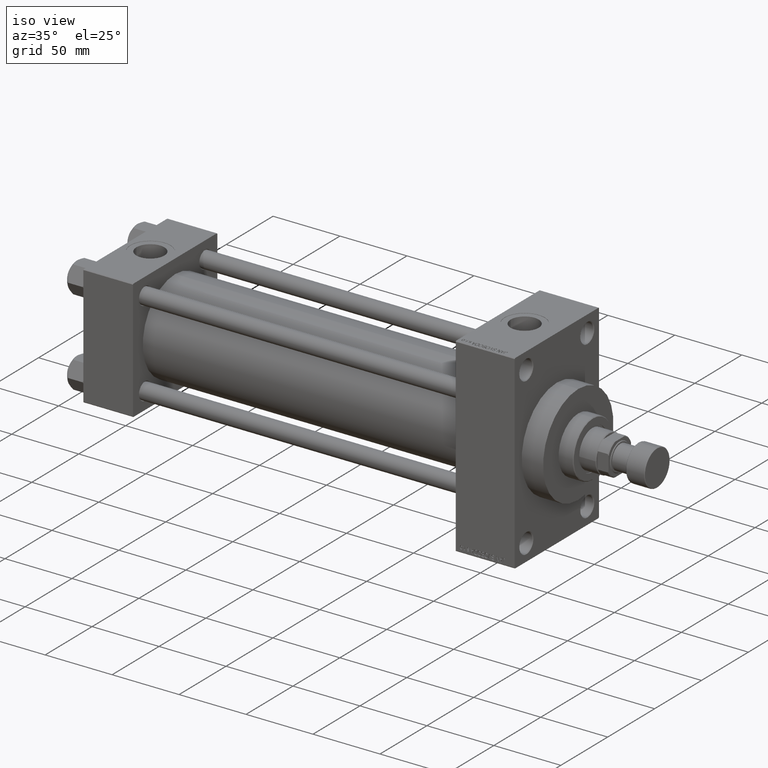
[diagram: clean part render]
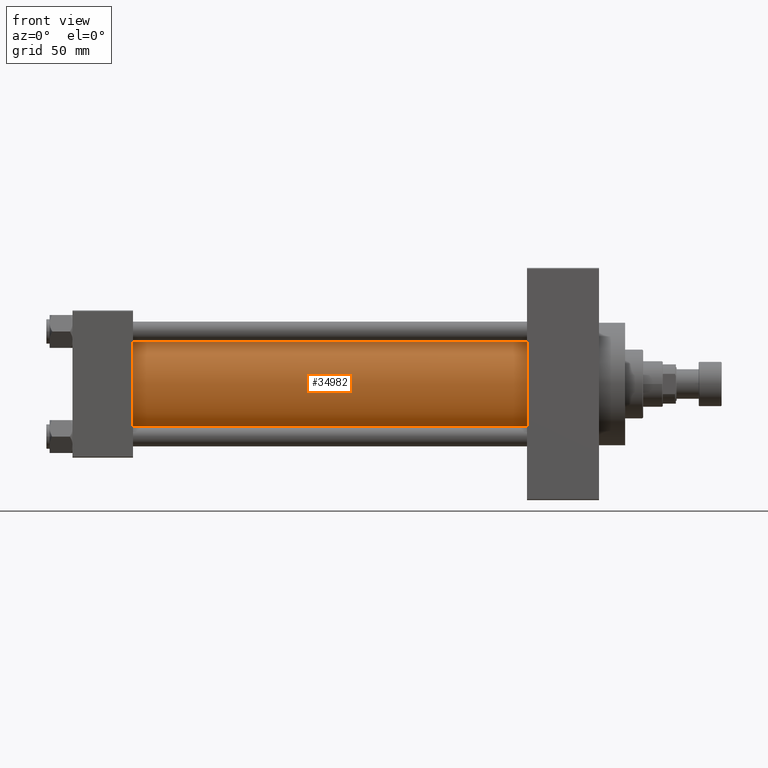
[diagram: tour spotlight — one face highlighted and labeled with its STEP entity id]
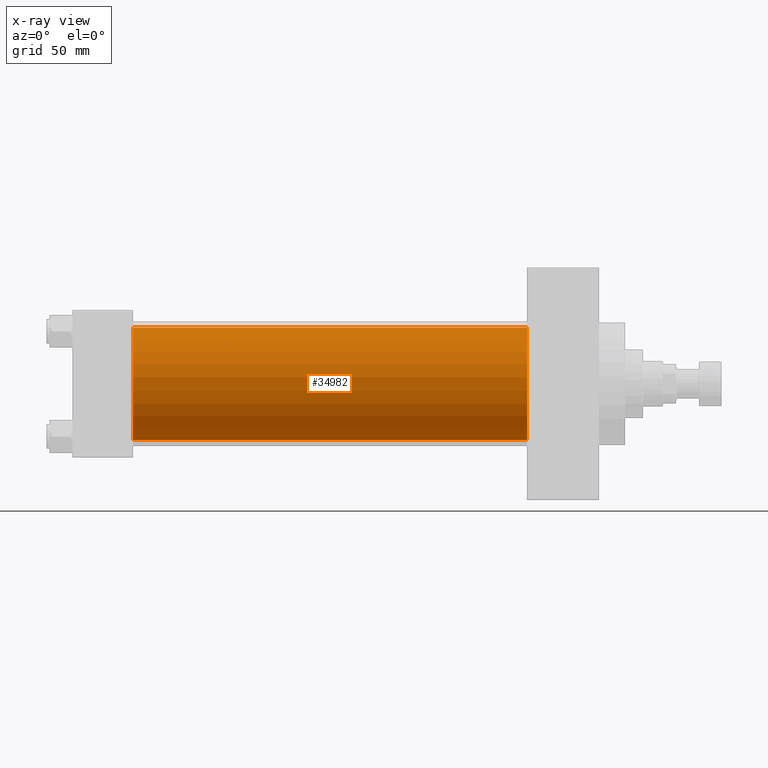
[diagram: x-ray of the same camera — body ghosted, this tour face saturated]
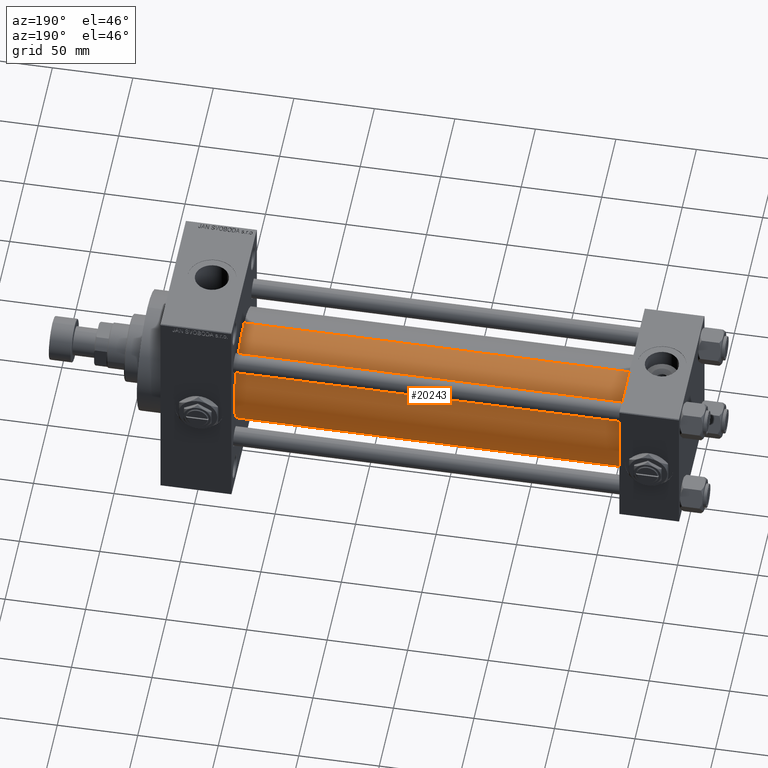
[diagram: tour spotlight — one face highlighted and labeled with its STEP entity id]
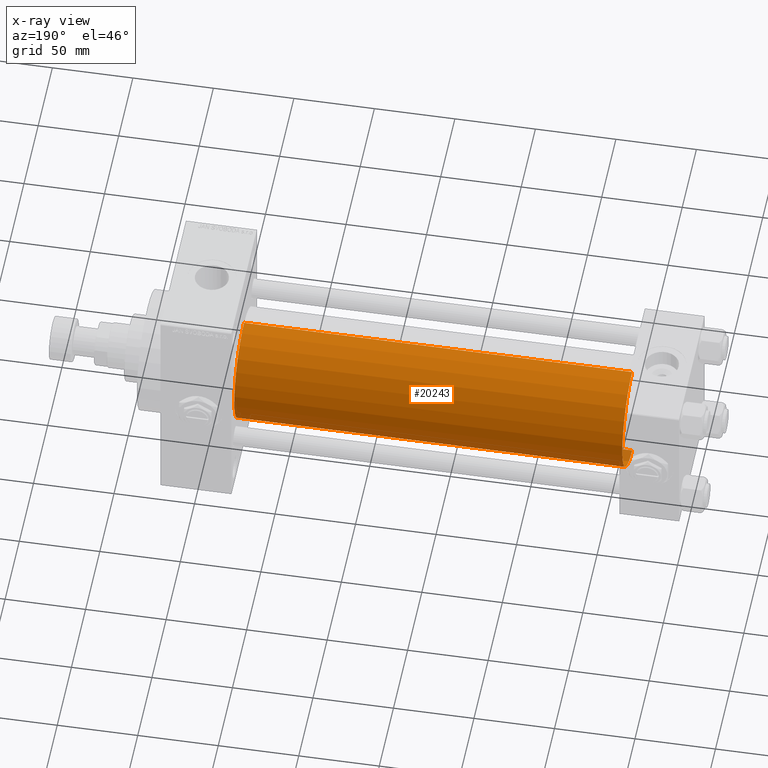
[diagram: x-ray of the same camera — body ghosted, this tour face saturated]
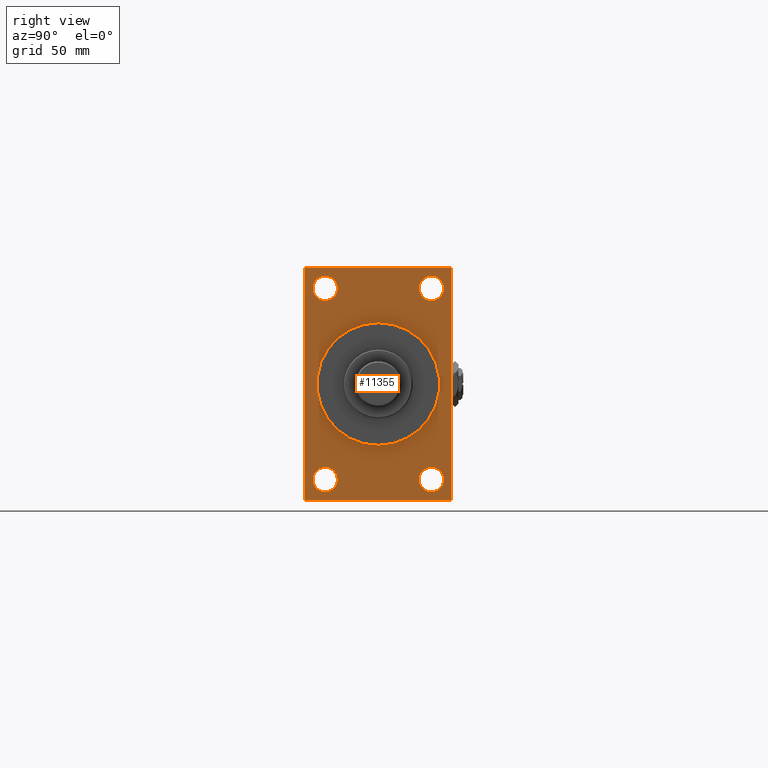
[diagram: tour spotlight — one face highlighted and labeled with its STEP entity id]
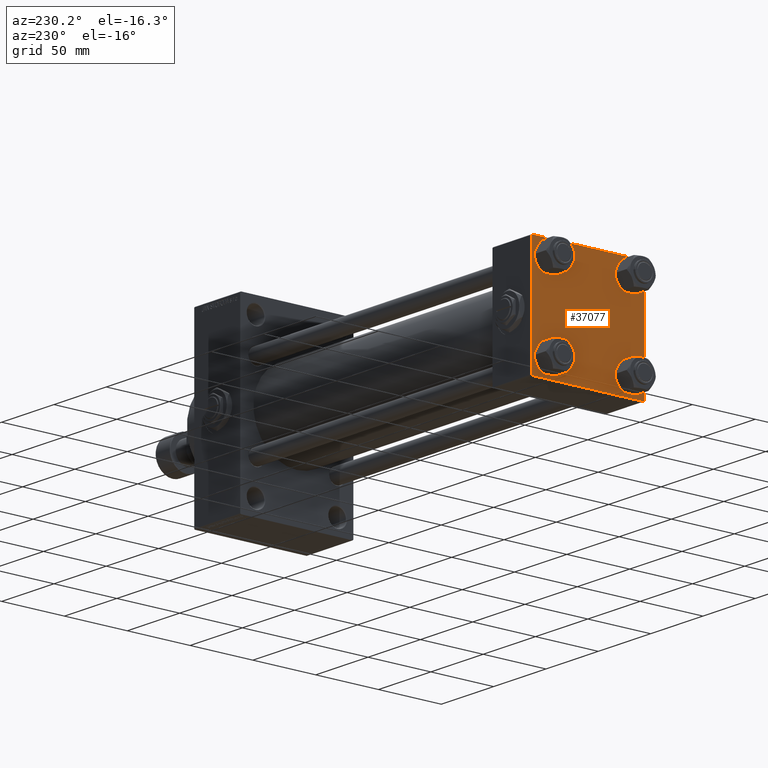
[diagram: tour spotlight — one face highlighted and labeled with its STEP entity id]
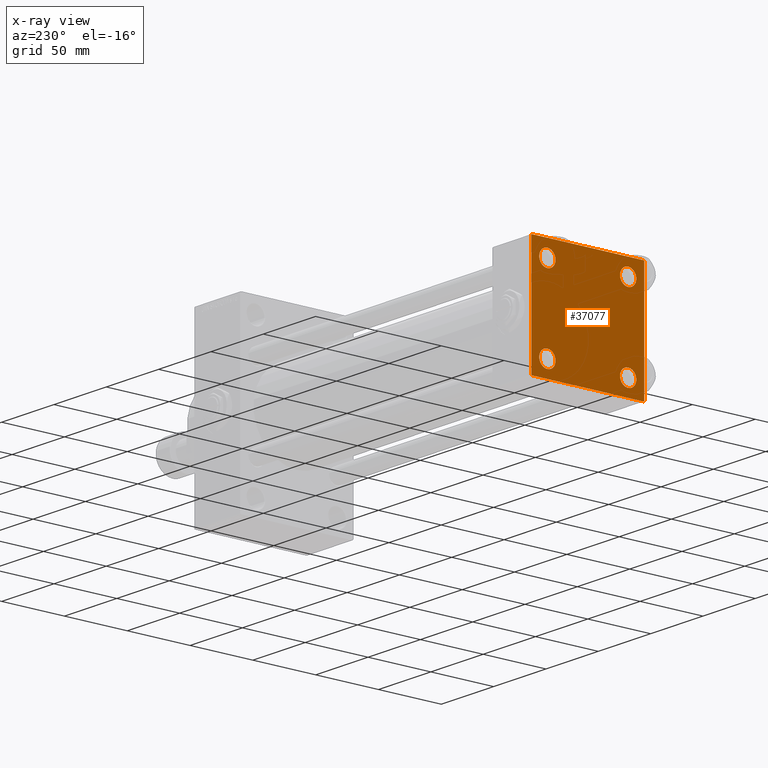
[diagram: x-ray of the same camera — body ghosted, this tour face saturated]
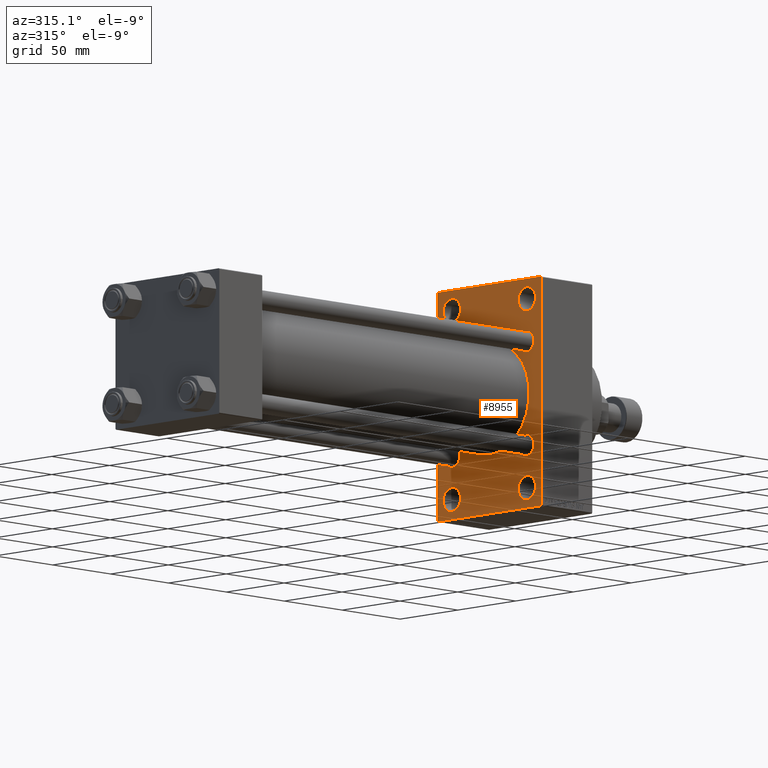
[diagram: tour spotlight — one face highlighted and labeled with its STEP entity id]
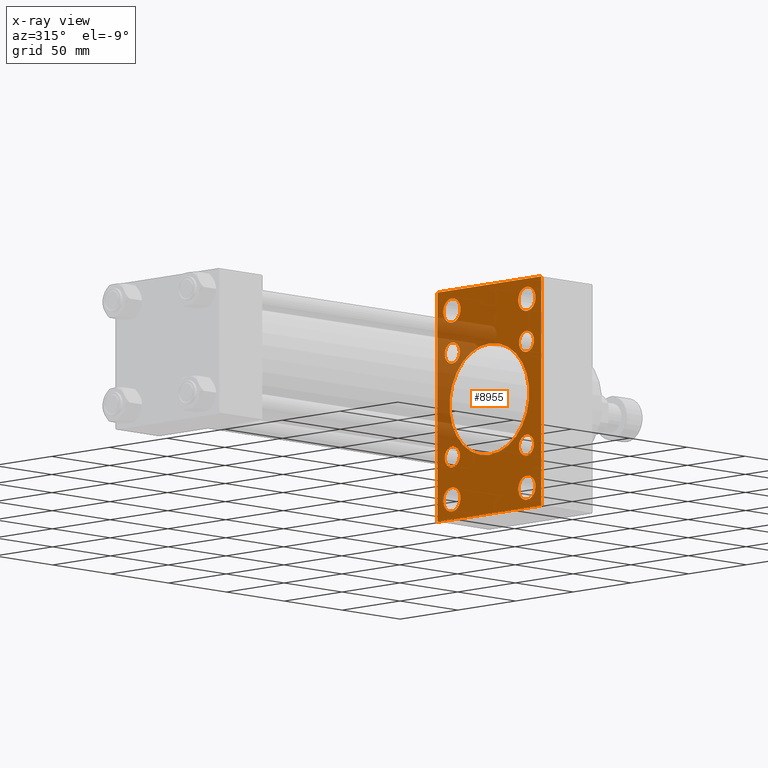
[diagram: x-ray of the same camera — body ghosted, this tour face saturated]
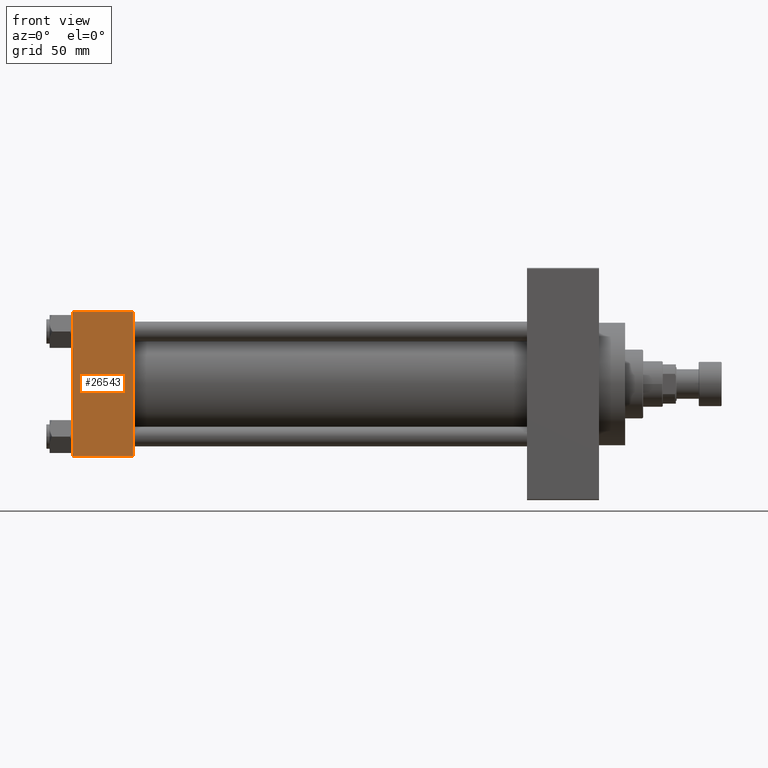
[diagram: tour spotlight — one face highlighted and labeled with its STEP entity id]
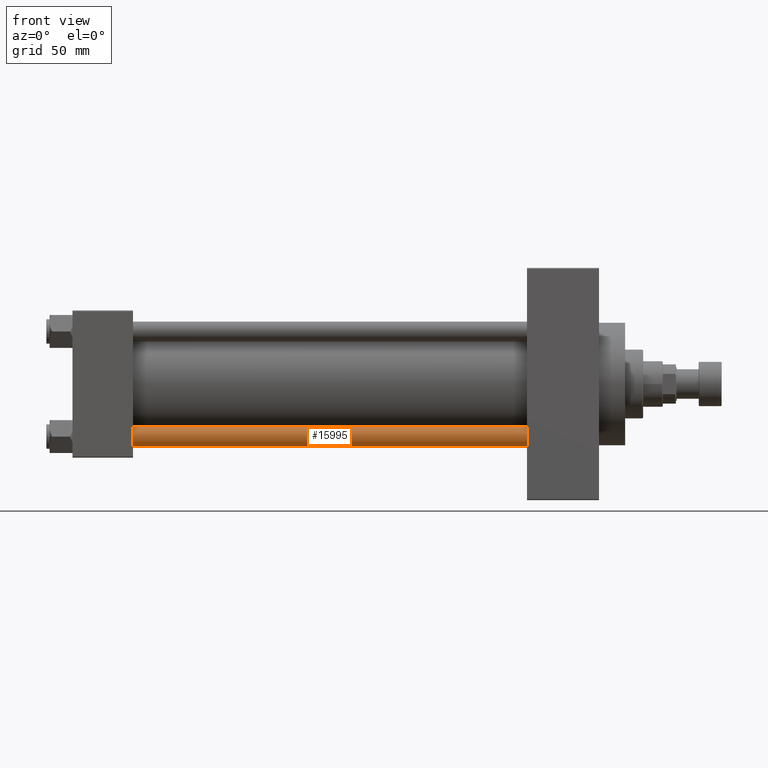
[diagram: tour spotlight — one face highlighted and labeled with its STEP entity id]
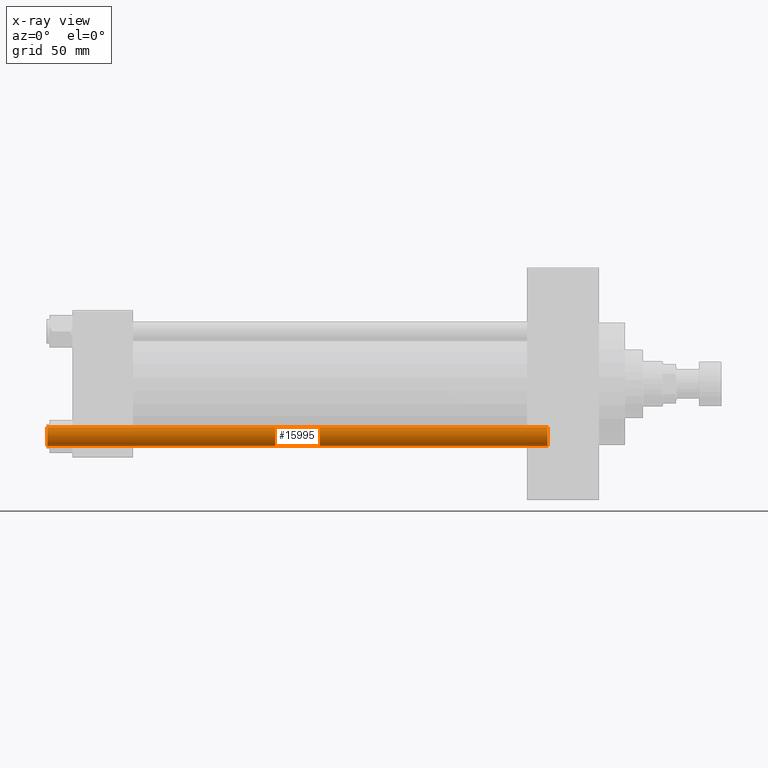
[diagram: x-ray of the same camera — body ghosted, this tour face saturated]
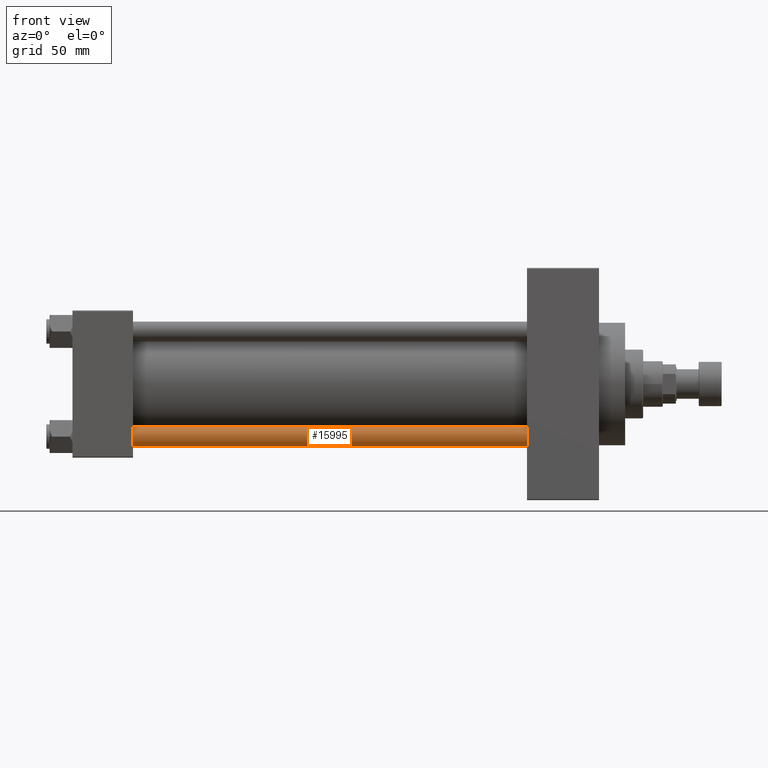
[diagram: tour spotlight — one face highlighted and labeled with its STEP entity id]
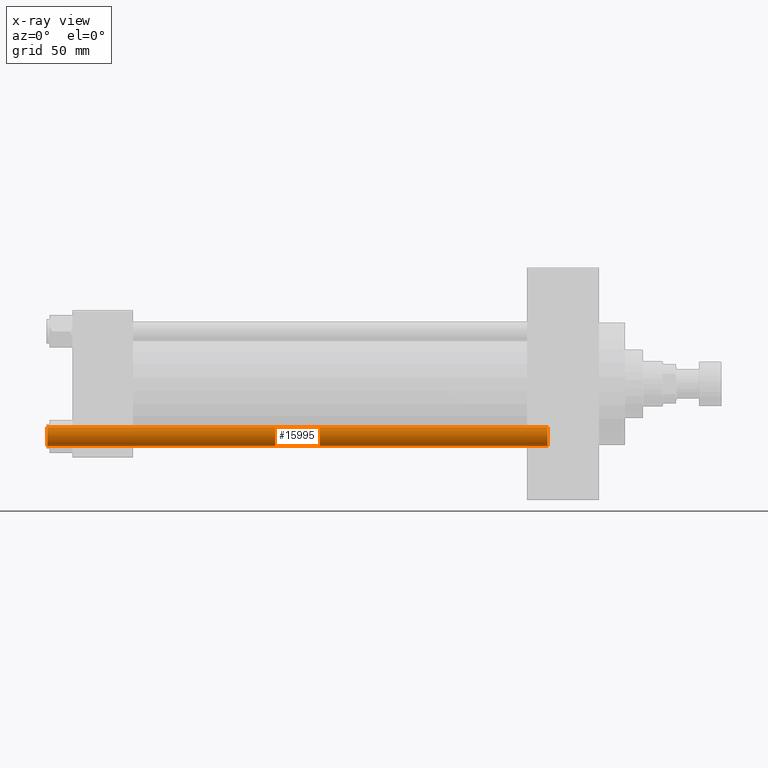
[diagram: x-ray of the same camera — body ghosted, this tour face saturated]
A machine part: a face-by-face anatomy tour. The part has 1218 B-rep faces; the first image is the clean iso view, then the 8 largest visible faces are spotlighted one at a time (largest first), each with its STEP entity span.

Face 1 — front view, entity #34982. An x-ray twin of the same camera follows (body ghosted, this face saturated) — the face is partly hidden behind the body. In plain terms, the highlighted cylindrical surface (partial cylindrical patch) has radius 34.5 mm, axis along (-1, -0, -0).
Definition (entity closure, byte-faithful):
#30 = CYLINDRICAL_SURFACE ( 'NONE', #24888, 34.50000000000000000 ) ;
#1283 = CIRCLE ( 'NONE', #43907, 34.50000000000000000 ) ;
#1665 = VERTEX_POINT ( 'NONE', #24393 ) ;
#2162 = EDGE_CURVE ( 'NONE', #14241, #15147, #37677, .T. ) ;
#4325 = AXIS2_PLACEMENT_3D ( 'NONE', #31380, #34902, #16011 ) ;
#4904 = ORIENTED_EDGE ( 'NONE', *, *, #23667, .F. ) ;
#7129 = ORIENTED_EDGE ( 'NONE', *, *, #2162, .T. ) ;
#8623 = ORIENTED_EDGE ( 'NONE', *, *, #15541, .T. ) ;
#10754 = CIRCLE ( 'NONE', #4325, 34.50000000000000000 ) ;
#12726 = DIRECTION ( 'NONE',  ( 0.000000000000000000, 0.000000000000000000, -1.000000000000000000 ) ) ;
#13720 = CARTESIAN_POINT ( 'NONE',  ( 277.9999999999999432, -2.602085213965210642E-15, 0.000000000000000000 ) ) ;
#14241 = VERTEX_POINT ( 'NONE', #27648 ) ;
#14350 = LINE ( 'NONE', #29716, #44744 ) ;
#15147 = VERTEX_POINT ( 'NONE', #25504 ) ;
#15541 = EDGE_CURVE ( 'NONE', #15147, #32188, #10754, .T. ) ;
#15606 = FACE_OUTER_BOUND ( 'NONE', #23705, .T. ) ;
#16011 = DIRECTION ( 'NONE',  ( 0.000000000000000000, 0.000000000000000000, 1.000000000000000000 ) ) ;
#18485 = ORIENTED_EDGE ( 'NONE', *, *, #42402, .F. ) ;
#23421 = CARTESIAN_POINT ( 'NONE',  ( 277.9999999999999432, -2.602085213965210642E-15, 0.000000000000000000 ) ) ;
#23667 = EDGE_CURVE ( 'NONE', #14241, #1665, #1283, .T. ) ;
#23705 = EDGE_LOOP ( 'NONE', ( #18485, #4904, #7129, #8623 ) ) ;
#24393 = CARTESIAN_POINT ( 'NONE',  ( 277.9999999999999432, 1.622946243093158675E-15, -34.50000000000000000 ) ) ;
#24808 = DIRECTION ( 'NONE',  ( 1.000000000000000000, 0.000000000000000000, 0.000000000000000000 ) ) ;
#24888 = AXIS2_PLACEMENT_3D ( 'NONE', #23421, #29984, #30981 ) ;
#25504 = CARTESIAN_POINT ( 'NONE',  ( 37.00000000000000711, -2.602085213965210642E-15, 34.50000000000000000 ) ) ;
#25929 = DIRECTION ( 'NONE',  ( -1.000000000000000000, -0.000000000000000000, -0.000000000000000000 ) ) ;
#26592 = CARTESIAN_POINT ( 'NONE',  ( 277.9999999999999432, -2.602085213965210642E-15, 34.50000000000000000 ) ) ;
#27648 = CARTESIAN_POINT ( 'NONE',  ( 277.9999999999999432, -2.602085213965210642E-15, 34.50000000000000000 ) ) ;
#29716 = CARTESIAN_POINT ( 'NONE',  ( 277.9999999999999432, 1.622946243093158675E-15, -34.50000000000000000 ) ) ;
#29984 = DIRECTION ( 'NONE',  ( -1.000000000000000000, -0.000000000000000000, -0.000000000000000000 ) ) ;
#30981 = DIRECTION ( 'NONE',  ( 0.000000000000000000, 0.000000000000000000, 1.000000000000000000 ) ) ;
#31380 = CARTESIAN_POINT ( 'NONE',  ( 37.00000000000000711, -2.602085213965210642E-15, 0.000000000000000000 ) ) ;
#32188 = VERTEX_POINT ( 'NONE', #35478 ) ;
#34902 = DIRECTION ( 'NONE',  ( 1.000000000000000000, -0.000000000000000000, 0.000000000000000000 ) ) ;
#34982 = ADVANCED_FACE ( 'NONE', ( #15606 ), #30, .T. ) ;
#35478 = CARTESIAN_POINT ( 'NONE',  ( 37.00000000000000711, 1.622946243093158675E-15, -34.50000000000000000 ) ) ;
#37677 = LINE ( 'NONE', #26592, #39031 ) ;
#39031 = VECTOR ( 'NONE', #45466, 1000.000000000000000 ) ;
#42402 = EDGE_CURVE ( 'NONE', #1665, #32188, #14350, .T. ) ;
#43907 = AXIS2_PLACEMENT_3D ( 'NONE', #13720, #24808, #12726 ) ;
#44744 = VECTOR ( 'NONE', #25929, 1000.000000000000000 ) ;
#45466 = DIRECTION ( 'NONE',  ( -1.000000000000000000, -0.000000000000000000, -0.000000000000000000 ) ) ;

Face 2 — auxiliary view, entity #20243. An x-ray twin of the same camera follows (body ghosted, this face saturated) — the face is partly hidden behind the body. In plain terms, the highlighted cylindrical surface (partial cylindrical patch) has radius 34.5 mm, axis along (-1, -0, -0).
Definition (entity closure, byte-faithful):
#397 = FACE_OUTER_BOUND ( 'NONE', #10678, .T. ) ;
#1665 = VERTEX_POINT ( 'NONE', #24393 ) ;
#2112 = CIRCLE ( 'NONE', #48698, 34.50000000000000000 ) ;
#2162 = EDGE_CURVE ( 'NONE', #14241, #15147, #37677, .T. ) ;
#10678 = EDGE_LOOP ( 'NONE', ( #36707, #32933, #45107, #16177 ) ) ;
#10817 = AXIS2_PLACEMENT_3D ( 'NONE', #49737, #27343, #23553 ) ;
#12100 = CARTESIAN_POINT ( 'NONE',  ( 37.00000000000000711, -2.602085213965210642E-15, 0.000000000000000000 ) ) ;
#14241 = VERTEX_POINT ( 'NONE', #27648 ) ;
#14350 = LINE ( 'NONE', #29716, #44744 ) ;
#15147 = VERTEX_POINT ( 'NONE', #25504 ) ;
#16177 = ORIENTED_EDGE ( 'NONE', *, *, #2162, .F. ) ;
#20243 = ADVANCED_FACE ( 'NONE', ( #397 ), #49482, .T. ) ;
#21237 = DIRECTION ( 'NONE',  ( 0.000000000000000000, 0.000000000000000000, -1.000000000000000000 ) ) ;
#22273 = DIRECTION ( 'NONE',  ( 0.000000000000000000, 0.000000000000000000, 1.000000000000000000 ) ) ;
#23553 = DIRECTION ( 'NONE',  ( 0.000000000000000000, 0.000000000000000000, 1.000000000000000000 ) ) ;
#24032 = EDGE_CURVE ( 'NONE', #1665, #14241, #2112, .T. ) ;
#24393 = CARTESIAN_POINT ( 'NONE',  ( 277.9999999999999432, 1.622946243093158675E-15, -34.50000000000000000 ) ) ;
#25504 = CARTESIAN_POINT ( 'NONE',  ( 37.00000000000000711, -2.602085213965210642E-15, 34.50000000000000000 ) ) ;
#25929 = DIRECTION ( 'NONE',  ( -1.000000000000000000, -0.000000000000000000, -0.000000000000000000 ) ) ;
#26592 = CARTESIAN_POINT ( 'NONE',  ( 277.9999999999999432, -2.602085213965210642E-15, 34.50000000000000000 ) ) ;
#27343 = DIRECTION ( 'NONE',  ( -1.000000000000000000, -0.000000000000000000, -0.000000000000000000 ) ) ;
#27648 = CARTESIAN_POINT ( 'NONE',  ( 277.9999999999999432, -2.602085213965210642E-15, 34.50000000000000000 ) ) ;
#29716 = CARTESIAN_POINT ( 'NONE',  ( 277.9999999999999432, 1.622946243093158675E-15, -34.50000000000000000 ) ) ;
#32188 = VERTEX_POINT ( 'NONE', #35478 ) ;
#32933 = ORIENTED_EDGE ( 'NONE', *, *, #42402, .T. ) ;
#35478 = CARTESIAN_POINT ( 'NONE',  ( 37.00000000000000711, 1.622946243093158675E-15, -34.50000000000000000 ) ) ;
#35978 = CIRCLE ( 'NONE', #44024, 34.50000000000000000 ) ;
#36707 = ORIENTED_EDGE ( 'NONE', *, *, #24032, .F. ) ;
#37677 = LINE ( 'NONE', #26592, #39031 ) ;
#39031 = VECTOR ( 'NONE', #45466, 1000.000000000000000 ) ;
#41163 = DIRECTION ( 'NONE',  ( 1.000000000000000000, -0.000000000000000000, 0.000000000000000000 ) ) ;
#42402 = EDGE_CURVE ( 'NONE', #1665, #32188, #14350, .T. ) ;
#44024 = AXIS2_PLACEMENT_3D ( 'NONE', #12100, #41163, #22273 ) ;
#44744 = VECTOR ( 'NONE', #25929, 1000.000000000000000 ) ;
#45107 = ORIENTED_EDGE ( 'NONE', *, *, #48525, .T. ) ;
#45466 = DIRECTION ( 'NONE',  ( -1.000000000000000000, -0.000000000000000000, -0.000000000000000000 ) ) ;
#47151 = CARTESIAN_POINT ( 'NONE',  ( 277.9999999999999432, -2.602085213965210642E-15, 0.000000000000000000 ) ) ;
#47407 = DIRECTION ( 'NONE',  ( 1.000000000000000000, 0.000000000000000000, 0.000000000000000000 ) ) ;
#48525 = EDGE_CURVE ( 'NONE', #32188, #15147, #35978, .T. ) ;
#48698 = AXIS2_PLACEMENT_3D ( 'NONE', #47151, #47407, #21237 ) ;
#49482 = CYLINDRICAL_SURFACE ( 'NONE', #10817, 34.50000000000000000 ) ;
#49737 = CARTESIAN_POINT ( 'NONE',  ( 277.9999999999999432, -2.602085213965210642E-15, 0.000000000000000000 ) ) ;

Face 3 — right view, entity #11355. In plain terms, the highlighted planar face has unit normal (-1, 0, 0).
Definition (entity closure, byte-faithful):
#370 = FACE_BOUND ( 'NONE', #19462, .T. ) ;
#1089 = VERTEX_POINT ( 'NONE', #15300 ) ;
#1119 = DIRECTION ( 'NONE',  ( -0.000000000000000000, 0.000000000000000000, 1.000000000000000000 ) ) ;
#1233 = DIRECTION ( 'NONE',  ( 0.000000000000000000, 0.000000000000000000, -1.000000000000000000 ) ) ;
#1282 = DIRECTION ( 'NONE',  ( -1.000000000000000000, 0.000000000000000000, -0.000000000000000000 ) ) ;
#1721 = ORIENTED_EDGE ( 'NONE', *, *, #44270, .F. ) ;
#2160 = DIRECTION ( 'NONE',  ( -0.000000000000000000, 0.7071067811865376918, 0.7071067811865574537 ) ) ;
#2355 = ORIENTED_EDGE ( 'NONE', *, *, #6355, .T. ) ;
#2638 = DIRECTION ( 'NONE',  ( 0.000000000000000000, 0.000000000000000000, -1.000000000000000000 ) ) ;
#2726 = VECTOR ( 'NONE', #2160, 999.9999999999998863 ) ;
#2826 = EDGE_LOOP ( 'NONE', ( #23730, #8804 ) ) ;
#3312 = CARTESIAN_POINT ( 'NONE',  ( 321.9999999999999432, 45.00000000000001421, -70.49999999999997158 ) ) ;
#3800 = ORIENTED_EDGE ( 'NONE', *, *, #44669, .T. ) ;
#3918 = VERTEX_POINT ( 'NONE', #17257 ) ;
#4045 = VERTEX_POINT ( 'NONE', #7401 ) ;
#4640 = FACE_OUTER_BOUND ( 'NONE', #49653, .T. ) ;
#5058 = DIRECTION ( 'NONE',  ( 0.000000000000000000, 0.000000000000000000, 1.000000000000000000 ) ) ;
#5408 = LINE ( 'NONE', #43440, #12693 ) ;
#5554 = DIRECTION ( 'NONE',  ( -0.000000000000000000, -0.7071067811865426878, -0.7071067811865524577 ) ) ;
#5617 = VECTOR ( 'NONE', #29049, 1000.000000000000000 ) ;
#5648 = CARTESIAN_POINT ( 'NONE',  ( 321.9999999999999432, 45.00000000000002132, 71.00000000000000000 ) ) ;
#6019 = ORIENTED_EDGE ( 'NONE', *, *, #27542, .T. ) ;
#6355 = EDGE_CURVE ( 'NONE', #4045, #19918, #43996, .T. ) ;
#6458 = ORIENTED_EDGE ( 'NONE', *, *, #43914, .T. ) ;
#7401 = CARTESIAN_POINT ( 'NONE',  ( 321.9999999999999432, -32.50000000000000000, -66.00000000000004263 ) ) ;
#7421 = EDGE_CURVE ( 'NONE', #3918, #1089, #43238, .T. ) ;
#7657 = DIRECTION ( 'NONE',  ( -1.000000000000000000, 0.000000000000000000, -0.000000000000000000 ) ) ;
#7853 = AXIS2_PLACEMENT_3D ( 'NONE', #31599, #47449, #24050 ) ;
#8076 = DIRECTION ( 'NONE',  ( 0.000000000000000000, 0.000000000000000000, 1.000000000000000000 ) ) ;
#8388 = CARTESIAN_POINT ( 'NONE',  ( 321.9999999999999432, -32.50000000000000000, 58.50000000000000711 ) ) ;
#8658 = FACE_BOUND ( 'NONE', #19218, .T. ) ;
#8804 = ORIENTED_EDGE ( 'NONE', *, *, #15380, .T. ) ;
#9081 = EDGE_CURVE ( 'NONE', #49740, #27875, #17501, .T. ) ;
#9095 = DIRECTION ( 'NONE',  ( 0.000000000000000000, -1.000000000000000000, -1.541976423090495387E-16 ) ) ;
#9145 = CARTESIAN_POINT ( 'NONE',  ( 321.9999999999999432, -44.99999999999997158, 70.49999999999998579 ) ) ;
#9285 = ORIENTED_EDGE ( 'NONE', *, *, #27446, .T. ) ;
#10010 = AXIS2_PLACEMENT_3D ( 'NONE', #32203, #40945, #1233 ) ;
#10360 = AXIS2_PLACEMENT_3D ( 'NONE', #12691, #40145, #43415 ) ;
#10735 = CARTESIAN_POINT ( 'NONE',  ( 321.9999999999999432, 32.50000000000000711, -50.99999999999993605 ) ) ;
#11355 = ADVANCED_FACE ( 'NONE', ( #8658, #370, #34627, #42677, #15972, #4640 ), #24031, .F. ) ;
#11847 = VERTEX_POINT ( 'NONE', #19448 ) ;
#12074 = CIRCLE ( 'NONE', #10360, 37.50000000000000711 ) ;
#12282 = VERTEX_POINT ( 'NONE', #43046 ) ;
#12691 = CARTESIAN_POINT ( 'NONE',  ( 321.9999999999999432, 0.000000000000000000, 0.000000000000000000 ) ) ;
#12693 = VECTOR ( 'NONE', #20783, 1000.000000000000000 ) ;
#12810 = AXIS2_PLACEMENT_3D ( 'NONE', #42598, #39318, #8076 ) ;
#12884 = LINE ( 'NONE', #43603, #45520 ) ;
#13001 = VERTEX_POINT ( 'NONE', #46817 ) ;
#13857 = CARTESIAN_POINT ( 'NONE',  ( 321.9999999999999432, -44.99999999999997158, 70.49999999999998579 ) ) ;
#14000 = CIRCLE ( 'NONE', #10010, 37.50000000000000711 ) ;
#14717 = CARTESIAN_POINT ( 'NONE',  ( 321.9999999999999432, 4.592425496802575156E-15, -37.50000000000000711 ) ) ;
#14906 = CIRCLE ( 'NONE', #35034, 7.500000000000047962 ) ;
#15300 = CARTESIAN_POINT ( 'NONE',  ( 321.9999999999999432, 32.50000000000000711, 66.00000000000005684 ) ) ;
#15380 = EDGE_CURVE ( 'NONE', #23486, #12282, #31645, .T. ) ;
#15724 = EDGE_CURVE ( 'NONE', #11847, #27875, #17772, .T. ) ;
#15972 = FACE_BOUND ( 'NONE', #39348, .T. ) ;
#16279 = EDGE_CURVE ( 'NONE', #40097, #30625, #14000, .T. ) ;
#16548 = DIRECTION ( 'NONE',  ( 0.000000000000000000, 0.000000000000000000, 1.000000000000000000 ) ) ;
#16815 = EDGE_CURVE ( 'NONE', #19918, #4045, #32523, .T. ) ;
#17229 = DIRECTION ( 'NONE',  ( -1.000000000000000000, 0.000000000000000000, -0.000000000000000000 ) ) ;
#17236 = AXIS2_PLACEMENT_3D ( 'NONE', #27992, #31507, #5058 ) ;
#17257 = CARTESIAN_POINT ( 'NONE',  ( 321.9999999999999432, 32.50000000000000711, 50.99999999999996447 ) ) ;
#17328 = CARTESIAN_POINT ( 'NONE',  ( 321.9999999999999432, 0.000000000000000000, 37.50000000000000711 ) ) ;
#17501 = LINE ( 'NONE', #5648, #49568 ) ;
#17772 = LINE ( 'NONE', #21300, #2726 ) ;
#17863 = ORIENTED_EDGE ( 'NONE', *, *, #9081, .F. ) ;
#17986 = DIRECTION ( 'NONE',  ( 0.000000000000000000, -4.886545002751570165E-17, -1.000000000000000000 ) ) ;
#18217 = LINE ( 'NONE', #40382, #5617 ) ;
#18373 = CARTESIAN_POINT ( 'NONE',  ( 321.9999999999999432, -32.50000000000000000, -50.99999999999992895 ) ) ;
#19218 = EDGE_LOOP ( 'NONE', ( #45350, #6458 ) ) ;
#19439 = AXIS2_PLACEMENT_3D ( 'NONE', #31340, #35368, #1119 ) ;
#19448 = CARTESIAN_POINT ( 'NONE',  ( 321.9999999999999432, 44.50000000000001421, -70.99999999999998579 ) ) ;
#19462 = EDGE_LOOP ( 'NONE', ( #2355, #42467 ) ) ;
#19918 = VERTEX_POINT ( 'NONE', #18373 ) ;
#20783 = DIRECTION ( 'NONE',  ( 0.000000000000000000, -0.7071067811865081598, 0.7071067811865867636 ) ) ;
#21270 = DIRECTION ( 'NONE',  ( 0.000000000000000000, 0.000000000000000000, 1.000000000000000000 ) ) ;
#21300 = CARTESIAN_POINT ( 'NONE',  ( 321.9999999999999432, 45.00000000000001421, -70.49999999999997158 ) ) ;
#21521 = AXIS2_PLACEMENT_3D ( 'NONE', #43242, #39708, #16548 ) ;
#21622 = CARTESIAN_POINT ( 'NONE',  ( 321.9999999999999432, 44.50000000000002132, 71.00000000000000000 ) ) ;
#21667 = ORIENTED_EDGE ( 'NONE', *, *, #33824, .F. ) ;
#21793 = CARTESIAN_POINT ( 'NONE',  ( 321.9999999999999432, -32.50000000000000000, 50.99999999999996447 ) ) ;
#22221 = CARTESIAN_POINT ( 'NONE',  ( 321.9999999999999432, -44.49999999999995026, 70.99999999999998579 ) ) ;
#23031 = CIRCLE ( 'NONE', #43941, 7.500000000000062172 ) ;
#23486 = VERTEX_POINT ( 'NONE', #10735 ) ;
#23730 = ORIENTED_EDGE ( 'NONE', *, *, #24594, .T. ) ;
#24031 = PLANE ( 'NONE',  #19439 ) ;
#24050 = DIRECTION ( 'NONE',  ( 0.000000000000000000, 0.000000000000000000, 1.000000000000000000 ) ) ;
#24278 = DIRECTION ( 'NONE',  ( -1.000000000000000000, 0.000000000000000000, -0.000000000000000000 ) ) ;
#24594 = EDGE_CURVE ( 'NONE', #12282, #23486, #23031, .T. ) ;
#24937 = CARTESIAN_POINT ( 'NONE',  ( 321.9999999999999432, 32.50000000000000711, -58.50000000000000000 ) ) ;
#26480 = VECTOR ( 'NONE', #5554, 1000.000000000000000 ) ;
#26987 = CIRCLE ( 'NONE', #49453, 7.500000000000047962 ) ;
#27165 = VERTEX_POINT ( 'NONE', #30183 ) ;
#27446 = EDGE_CURVE ( 'NONE', #49740, #29886, #5408, .T. ) ;
#27542 = EDGE_CURVE ( 'NONE', #31661, #27165, #41161, .T. ) ;
#27875 = VERTEX_POINT ( 'NONE', #3312 ) ;
#27992 = CARTESIAN_POINT ( 'NONE',  ( 321.9999999999999432, -32.50000000000000000, -58.49999999999999289 ) ) ;
#28009 = VERTEX_POINT ( 'NONE', #47812 ) ;
#28222 = DIRECTION ( 'NONE',  ( 0.000000000000000000, 0.000000000000000000, 1.000000000000000000 ) ) ;
#28455 = AXIS2_PLACEMENT_3D ( 'NONE', #24937, #1282, #28222 ) ;
#28741 = DIRECTION ( 'NONE',  ( 0.000000000000000000, -1.000000000000000000, -1.541976423090495633E-16 ) ) ;
#29049 = DIRECTION ( 'NONE',  ( 0.000000000000000000, 0.7071067811865181518, -0.7071067811865769936 ) ) ;
#29712 = CIRCLE ( 'NONE', #12810, 7.500000000000047962 ) ;
#29886 = VERTEX_POINT ( 'NONE', #21622 ) ;
#30183 = CARTESIAN_POINT ( 'NONE',  ( 321.9999999999999432, -44.99999999999997158, -70.49999999999995737 ) ) ;
#30218 = VECTOR ( 'NONE', #28741, 1000.000000000000000 ) ;
#30625 = VERTEX_POINT ( 'NONE', #14717 ) ;
#30958 = EDGE_CURVE ( 'NONE', #35673, #28009, #29712, .T. ) ;
#31012 = EDGE_CURVE ( 'NONE', #49725, #31661, #47594, .T. ) ;
#31340 = CARTESIAN_POINT ( 'NONE',  ( 321.9999999999999432, 0.000000000000000000, 0.000000000000000000 ) ) ;
#31507 = DIRECTION ( 'NONE',  ( -1.000000000000000000, 0.000000000000000000, -0.000000000000000000 ) ) ;
#31599 = CARTESIAN_POINT ( 'NONE',  ( 321.9999999999999432, 32.50000000000000711, 58.50000000000000711 ) ) ;
#31645 = CIRCLE ( 'NONE', #28455, 7.500000000000062172 ) ;
#31661 = VERTEX_POINT ( 'NONE', #9145 ) ;
#32203 = CARTESIAN_POINT ( 'NONE',  ( 321.9999999999999432, 0.000000000000000000, 0.000000000000000000 ) ) ;
#32523 = CIRCLE ( 'NONE', #17236, 7.500000000000055067 ) ;
#32696 = EDGE_CURVE ( 'NONE', #27165, #13001, #18217, .T. ) ;
#33566 = CARTESIAN_POINT ( 'NONE',  ( 321.9999999999999432, 45.00000000000002132, 70.49999999999994316 ) ) ;
#33824 = EDGE_CURVE ( 'NONE', #30625, #40097, #12074, .T. ) ;
#34627 = FACE_BOUND ( 'NONE', #2826, .T. ) ;
#35025 = EDGE_LOOP ( 'NONE', ( #49111, #3800 ) ) ;
#35034 = AXIS2_PLACEMENT_3D ( 'NONE', #39893, #24278, #43166 ) ;
#35368 = DIRECTION ( 'NONE',  ( -1.000000000000000000, 0.000000000000000000, -0.000000000000000000 ) ) ;
#35673 = VERTEX_POINT ( 'NONE', #21793 ) ;
#36276 = ORIENTED_EDGE ( 'NONE', *, *, #15724, .T. ) ;
#36294 = CARTESIAN_POINT ( 'NONE',  ( 321.9999999999999432, 45.00000000000001421, -70.99999999999998579 ) ) ;
#36541 = LINE ( 'NONE', #36294, #30218 ) ;
#39318 = DIRECTION ( 'NONE',  ( -1.000000000000000000, 0.000000000000000000, -0.000000000000000000 ) ) ;
#39348 = EDGE_LOOP ( 'NONE', ( #49799, #21667 ) ) ;
#39708 = DIRECTION ( 'NONE',  ( -1.000000000000000000, 0.000000000000000000, -0.000000000000000000 ) ) ;
#39893 = CARTESIAN_POINT ( 'NONE',  ( 321.9999999999999432, 32.50000000000000711, 58.50000000000000711 ) ) ;
#40097 = VERTEX_POINT ( 'NONE', #17328 ) ;
#40145 = DIRECTION ( 'NONE',  ( 1.000000000000000000, 0.000000000000000000, 0.000000000000000000 ) ) ;
#40382 = CARTESIAN_POINT ( 'NONE',  ( 321.9999999999999432, -44.49999999999997158, -71.00000000000000000 ) ) ;
#40945 = DIRECTION ( 'NONE',  ( 1.000000000000000000, 0.000000000000000000, 0.000000000000000000 ) ) ;
#41161 = LINE ( 'NONE', #48200, #48842 ) ;
#42467 = ORIENTED_EDGE ( 'NONE', *, *, #16815, .T. ) ;
#42598 = CARTESIAN_POINT ( 'NONE',  ( 321.9999999999999432, -32.50000000000000000, 58.50000000000000711 ) ) ;
#42677 = FACE_BOUND ( 'NONE', #35025, .T. ) ;
#43046 = CARTESIAN_POINT ( 'NONE',  ( 321.9999999999999432, 32.50000000000000711, -66.00000000000005684 ) ) ;
#43166 = DIRECTION ( 'NONE',  ( 0.000000000000000000, 0.000000000000000000, 1.000000000000000000 ) ) ;
#43238 = CIRCLE ( 'NONE', #7853, 7.500000000000047962 ) ;
#43242 = CARTESIAN_POINT ( 'NONE',  ( 321.9999999999999432, -32.50000000000000000, -58.49999999999999289 ) ) ;
#43313 = ORIENTED_EDGE ( 'NONE', *, *, #31012, .T. ) ;
#43415 = DIRECTION ( 'NONE',  ( 0.000000000000000000, 0.000000000000000000, -1.000000000000000000 ) ) ;
#43440 = CARTESIAN_POINT ( 'NONE',  ( 321.9999999999999432, 44.50000000000002132, 71.00000000000000000 ) ) ;
#43603 = CARTESIAN_POINT ( 'NONE',  ( 321.9999999999999432, 45.00000000000002132, 71.00000000000000000 ) ) ;
#43914 = EDGE_CURVE ( 'NONE', #28009, #35673, #26987, .T. ) ;
#43941 = AXIS2_PLACEMENT_3D ( 'NONE', #48422, #17229, #21270 ) ;
#43996 = CIRCLE ( 'NONE', #21521, 7.500000000000055067 ) ;
#44270 = EDGE_CURVE ( 'NONE', #11847, #13001, #36541, .T. ) ;
#44669 = EDGE_CURVE ( 'NONE', #1089, #3918, #14906, .T. ) ;
#45069 = EDGE_CURVE ( 'NONE', #29886, #49725, #12884, .T. ) ;
#45350 = ORIENTED_EDGE ( 'NONE', *, *, #30958, .T. ) ;
#45520 = VECTOR ( 'NONE', #9095, 1000.000000000000000 ) ;
#46672 = DIRECTION ( 'NONE',  ( 0.000000000000000000, 0.000000000000000000, 1.000000000000000000 ) ) ;
#46811 = ORIENTED_EDGE ( 'NONE', *, *, #45069, .T. ) ;
#46817 = CARTESIAN_POINT ( 'NONE',  ( 321.9999999999999432, -44.49999999999994316, -71.00000000000000000 ) ) ;
#47449 = DIRECTION ( 'NONE',  ( -1.000000000000000000, 0.000000000000000000, -0.000000000000000000 ) ) ;
#47594 = LINE ( 'NONE', #13857, #26480 ) ;
#47812 = CARTESIAN_POINT ( 'NONE',  ( 321.9999999999999432, -32.50000000000000000, 66.00000000000005684 ) ) ;
#48111 = ORIENTED_EDGE ( 'NONE', *, *, #32696, .T. ) ;
#48200 = CARTESIAN_POINT ( 'NONE',  ( 321.9999999999999432, -44.99999999999997158, 70.99999999999998579 ) ) ;
#48422 = CARTESIAN_POINT ( 'NONE',  ( 321.9999999999999432, 32.50000000000000711, -58.50000000000000000 ) ) ;
#48842 = VECTOR ( 'NONE', #2638, 1000.000000000000000 ) ;
#49111 = ORIENTED_EDGE ( 'NONE', *, *, #7421, .T. ) ;
#49453 = AXIS2_PLACEMENT_3D ( 'NONE', #8388, #7657, #46672 ) ;
#49568 = VECTOR ( 'NONE', #17986, 1000.000000000000000 ) ;
#49653 = EDGE_LOOP ( 'NONE', ( #6019, #48111, #1721, #36276, #17863, #9285, #46811, #43313 ) ) ;
#49725 = VERTEX_POINT ( 'NONE', #22221 ) ;
#49740 = VERTEX_POINT ( 'NONE', #33566 ) ;
#49799 = ORIENTED_EDGE ( 'NONE', *, *, #16279, .F. ) ;

Face 4 — auxiliary view, entity #37077. An x-ray twin of the same camera follows (body ghosted, this face saturated) — the face is partly hidden behind the body. In plain terms, the highlighted planar face has unit normal (-1, 0, 0).
Definition (entity closure, byte-faithful):
#251 = DIRECTION ( 'NONE',  ( 1.000000000000000000, -0.000000000000000000, 0.000000000000000000 ) ) ;
#308 = VERTEX_POINT ( 'NONE', #29043 ) ;
#364 = VERTEX_POINT ( 'NONE', #48644 ) ;
#780 = EDGE_CURVE ( 'NONE', #33236, #45666, #2544, .T. ) ;
#806 = CARTESIAN_POINT ( 'NONE',  ( 0.000000000000000000, 32.14999999999999147, 32.15000000000000568 ) ) ;
#1346 = EDGE_CURVE ( 'NONE', #3621, #8487, #14094, .T. ) ;
#1389 = EDGE_LOOP ( 'NONE', ( #16515, #47517, #29436, #15257, #39696, #30640, #7267, #42457 ) ) ;
#1472 = DIRECTION ( 'NONE',  ( 1.000000000000000000, -0.000000000000000000, 0.000000000000000000 ) ) ;
#1594 = EDGE_CURVE ( 'NONE', #364, #16347, #11674, .T. ) ;
#1736 = EDGE_CURVE ( 'NONE', #20728, #24853, #18912, .T. ) ;
#1874 = CARTESIAN_POINT ( 'NONE',  ( 0.000000000000000000, -45.00000000000000000, -44.49999999999995737 ) ) ;
#2544 = LINE ( 'NONE', #13364, #41372 ) ;
#3621 = VERTEX_POINT ( 'NONE', #14290 ) ;
#5242 = CARTESIAN_POINT ( 'NONE',  ( 0.000000000000000000, 44.49999999999998579, 45.00000000000001421 ) ) ;
#6368 = FACE_BOUND ( 'NONE', #32090, .T. ) ;
#7267 = ORIENTED_EDGE ( 'NONE', *, *, #40582, .F. ) ;
#7520 = CARTESIAN_POINT ( 'NONE',  ( 0.000000000000000000, 44.99999999999998579, 45.00000000000001421 ) ) ;
#7609 = CARTESIAN_POINT ( 'NONE',  ( 0.000000000000000000, 44.99999999999998579, 44.50000000000001421 ) ) ;
#8000 = LINE ( 'NONE', #41338, #26632 ) ;
#8487 = VERTEX_POINT ( 'NONE', #20897 ) ;
#9508 = CARTESIAN_POINT ( 'NONE',  ( 0.000000000000000000, 32.14999999999999147, -32.15000000000000568 ) ) ;
#9594 = EDGE_CURVE ( 'NONE', #47337, #14414, #8000, .T. ) ;
#9889 = PLANE ( 'NONE',  #14793 ) ;
#9998 = DIRECTION ( 'NONE',  ( 0.000000000000000000, 7.709882115452476934E-17, -1.000000000000000000 ) ) ;
#10151 = AXIS2_PLACEMENT_3D ( 'NONE', #33027, #13877, #11824 ) ;
#10173 = CARTESIAN_POINT ( 'NONE',  ( 0.000000000000000000, 44.99999999999998579, -44.49999999999995737 ) ) ;
#10393 = FACE_BOUND ( 'NONE', #19023, .T. ) ;
#10467 = CIRCLE ( 'NONE', #20111, 6.499999999999977796 ) ;
#10719 = VECTOR ( 'NONE', #10919, 1000.000000000000000 ) ;
#10801 = DIRECTION ( 'NONE',  ( 0.000000000000000000, 0.000000000000000000, -1.000000000000000000 ) ) ;
#10919 = DIRECTION ( 'NONE',  ( 0.000000000000000000, -1.000000000000000000, -1.541976423090495633E-16 ) ) ;
#11096 = VERTEX_POINT ( 'NONE', #11760 ) ;
#11674 = CIRCLE ( 'NONE', #24515, 6.499999999999977796 ) ;
#11760 = CARTESIAN_POINT ( 'NONE',  ( 0.000000000000000000, -32.14999999999997726, 38.65000000000003411 ) ) ;
#11824 = DIRECTION ( 'NONE',  ( 0.000000000000000000, 0.000000000000000000, 1.000000000000000000 ) ) ;
#12476 = CARTESIAN_POINT ( 'NONE',  ( -0.000000000000000000, -44.75000000000029843, 44.74999999999967315 ) ) ;
#12524 = VERTEX_POINT ( 'NONE', #1874 ) ;
#12536 = ORIENTED_EDGE ( 'NONE', *, *, #21036, .T. ) ;
#12992 = CARTESIAN_POINT ( 'NONE',  ( 0.000000000000000000, -32.14999999999997726, -32.15000000000001279 ) ) ;
#13016 = ORIENTED_EDGE ( 'NONE', *, *, #14324, .T. ) ;
#13250 = AXIS2_PLACEMENT_3D ( 'NONE', #806, #32029, #16146 ) ;
#13364 = CARTESIAN_POINT ( 'NONE',  ( 0.000000000000000000, 44.74999999999999289, 44.74999999999999289 ) ) ;
#13676 = FACE_BOUND ( 'NONE', #31315, .T. ) ;
#13877 = DIRECTION ( 'NONE',  ( 1.000000000000000000, -0.000000000000000000, 0.000000000000000000 ) ) ;
#14027 = CARTESIAN_POINT ( 'NONE',  ( 0.000000000000000000, 44.49999999999998579, -44.99999999999998579 ) ) ;
#14094 = CIRCLE ( 'NONE', #13250, 6.499999999999977796 ) ;
#14290 = CARTESIAN_POINT ( 'NONE',  ( 0.000000000000000000, 32.14999999999999147, 38.64999999999999147 ) ) ;
#14324 = EDGE_CURVE ( 'NONE', #11096, #32758, #25225, .T. ) ;
#14414 = VERTEX_POINT ( 'NONE', #14027 ) ;
#14664 = LINE ( 'NONE', #37589, #22174 ) ;
#14702 = EDGE_CURVE ( 'NONE', #14414, #43979, #30577, .T. ) ;
#14793 = AXIS2_PLACEMENT_3D ( 'NONE', #17718, #29537, #33075 ) ;
#15257 = ORIENTED_EDGE ( 'NONE', *, *, #41901, .T. ) ;
#15542 = EDGE_CURVE ( 'NONE', #32291, #308, #38924, .T. ) ;
#15562 = ORIENTED_EDGE ( 'NONE', *, *, #19957, .T. ) ;
#15653 = AXIS2_PLACEMENT_3D ( 'NONE', #43533, #20628, #35991 ) ;
#16050 = ORIENTED_EDGE ( 'NONE', *, *, #24881, .T. ) ;
#16146 = DIRECTION ( 'NONE',  ( 0.000000000000000000, 0.000000000000000000, 1.000000000000000000 ) ) ;
#16347 = VERTEX_POINT ( 'NONE', #38141 ) ;
#16515 = ORIENTED_EDGE ( 'NONE', *, *, #39784, .T. ) ;
#16572 = CARTESIAN_POINT ( 'NONE',  ( 0.000000000000000000, -32.14999999999997726, 32.15000000000001279 ) ) ;
#16835 = LINE ( 'NONE', #32191, #38310 ) ;
#17718 = CARTESIAN_POINT ( 'NONE',  ( 0.000000000000000000, 0.000000000000000000, 0.000000000000000000 ) ) ;
#18464 = DIRECTION ( 'NONE',  ( 0.000000000000000000, -1.000000000000000000, -1.541976423090495387E-16 ) ) ;
#18713 = CARTESIAN_POINT ( 'NONE',  ( 0.000000000000000000, -32.14999999999997726, 25.64999999999999147 ) ) ;
#18912 = CIRCLE ( 'NONE', #15653, 6.499999999999977796 ) ;
#19023 = EDGE_LOOP ( 'NONE', ( #38484, #15562 ) ) ;
#19601 = ORIENTED_EDGE ( 'NONE', *, *, #1594, .T. ) ;
#19851 = CARTESIAN_POINT ( 'NONE',  ( 0.000000000000000000, 32.14999999999999147, 32.15000000000000568 ) ) ;
#19957 = EDGE_CURVE ( 'NONE', #8487, #3621, #25402, .T. ) ;
#20051 = DIRECTION ( 'NONE',  ( -0.000000000000000000, 0.7071067811865425767, 0.7071067811865524577 ) ) ;
#20111 = AXIS2_PLACEMENT_3D ( 'NONE', #12992, #24840, #44221 ) ;
#20621 = CIRCLE ( 'NONE', #10151, 6.500000000000019540 ) ;
#20628 = DIRECTION ( 'NONE',  ( 1.000000000000000000, -0.000000000000000000, 0.000000000000000000 ) ) ;
#20728 = VERTEX_POINT ( 'NONE', #42643 ) ;
#20897 = CARTESIAN_POINT ( 'NONE',  ( 0.000000000000000000, 32.14999999999999147, 25.65000000000002700 ) ) ;
#21036 = EDGE_CURVE ( 'NONE', #24853, #20728, #26227, .T. ) ;
#22174 = VECTOR ( 'NONE', #18464, 1000.000000000000000 ) ;
#22436 = CARTESIAN_POINT ( 'NONE',  ( 0.000000000000000000, 32.14999999999999147, -25.65000000000002700 ) ) ;
#22762 = CARTESIAN_POINT ( 'NONE',  ( 0.000000000000000000, 44.99999999999998579, -44.99999999999998579 ) ) ;
#24367 = DIRECTION ( 'NONE',  ( 0.000000000000000000, -0.7071067811865474617, 0.7071067811865474617 ) ) ;
#24515 = AXIS2_PLACEMENT_3D ( 'NONE', #26450, #251, #30219 ) ;
#24840 = DIRECTION ( 'NONE',  ( 1.000000000000000000, -0.000000000000000000, 0.000000000000000000 ) ) ;
#24853 = VERTEX_POINT ( 'NONE', #22436 ) ;
#24881 = EDGE_CURVE ( 'NONE', #32758, #11096, #20621, .T. ) ;
#25225 = CIRCLE ( 'NONE', #40502, 6.500000000000019540 ) ;
#25402 = CIRCLE ( 'NONE', #33428, 6.499999999999977796 ) ;
#26227 = CIRCLE ( 'NONE', #41390, 6.499999999999977796 ) ;
#26450 = CARTESIAN_POINT ( 'NONE',  ( 0.000000000000000000, -32.14999999999997726, -32.15000000000001279 ) ) ;
#26632 = VECTOR ( 'NONE', #29766, 1000.000000000000114 ) ;
#26949 = VECTOR ( 'NONE', #10801, 1000.000000000000000 ) ;
#29043 = CARTESIAN_POINT ( 'NONE',  ( 0.000000000000000000, -44.49999999999995737, 45.00000000000000000 ) ) ;
#29436 = ORIENTED_EDGE ( 'NONE', *, *, #14702, .T. ) ;
#29537 = DIRECTION ( 'NONE',  ( -1.000000000000000000, 0.000000000000000000, -0.000000000000000000 ) ) ;
#29766 = DIRECTION ( 'NONE',  ( -0.000000000000000000, -0.7071067811865474617, -0.7071067811865474617 ) ) ;
#30070 = VECTOR ( 'NONE', #20051, 1000.000000000000114 ) ;
#30219 = DIRECTION ( 'NONE',  ( 0.000000000000000000, 0.000000000000000000, 1.000000000000000000 ) ) ;
#30372 = ORIENTED_EDGE ( 'NONE', *, *, #33444, .T. ) ;
#30577 = LINE ( 'NONE', #22762, #10719 ) ;
#30640 = ORIENTED_EDGE ( 'NONE', *, *, #15542, .T. ) ;
#31315 = EDGE_LOOP ( 'NONE', ( #13016, #16050 ) ) ;
#31942 = DIRECTION ( 'NONE',  ( 0.000000000000000000, 0.000000000000000000, 1.000000000000000000 ) ) ;
#32029 = DIRECTION ( 'NONE',  ( 1.000000000000000000, -0.000000000000000000, 0.000000000000000000 ) ) ;
#32090 = EDGE_LOOP ( 'NONE', ( #19601, #30372 ) ) ;
#32191 = CARTESIAN_POINT ( 'NONE',  ( 0.000000000000000000, -44.74999999999998579, -44.74999999999998579 ) ) ;
#32291 = VERTEX_POINT ( 'NONE', #47538 ) ;
#32321 = FACE_OUTER_BOUND ( 'NONE', #1389, .T. ) ;
#32758 = VERTEX_POINT ( 'NONE', #18713 ) ;
#33027 = CARTESIAN_POINT ( 'NONE',  ( 0.000000000000000000, -32.14999999999997726, 32.15000000000001279 ) ) ;
#33075 = DIRECTION ( 'NONE',  ( -0.000000000000000000, 0.000000000000000000, 1.000000000000000000 ) ) ;
#33236 = VERTEX_POINT ( 'NONE', #5242 ) ;
#33428 = AXIS2_PLACEMENT_3D ( 'NONE', #19851, #49793, #45795 ) ;
#33444 = EDGE_CURVE ( 'NONE', #16347, #364, #10467, .T. ) ;
#35991 = DIRECTION ( 'NONE',  ( 0.000000000000000000, 0.000000000000000000, 1.000000000000000000 ) ) ;
#36794 = DIRECTION ( 'NONE',  ( 0.000000000000000000, 0.7071067811865474617, -0.7071067811865474617 ) ) ;
#37077 = ADVANCED_FACE ( 'NONE', ( #13676, #6368, #44386, #10393, #32321 ), #9889, .T. ) ;
#37589 = CARTESIAN_POINT ( 'NONE',  ( 0.000000000000000000, 44.99999999999998579, 45.00000000000001421 ) ) ;
#38141 = CARTESIAN_POINT ( 'NONE',  ( 0.000000000000000000, -32.14999999999997726, -38.64999999999999147 ) ) ;
#38310 = VECTOR ( 'NONE', #24367, 1000.000000000000114 ) ;
#38484 = ORIENTED_EDGE ( 'NONE', *, *, #1346, .T. ) ;
#38924 = LINE ( 'NONE', #12476, #30070 ) ;
#38930 = EDGE_CURVE ( 'NONE', #32291, #12524, #48755, .T. ) ;
#39696 = ORIENTED_EDGE ( 'NONE', *, *, #38930, .F. ) ;
#39784 = EDGE_CURVE ( 'NONE', #45666, #47337, #46055, .T. ) ;
#40502 = AXIS2_PLACEMENT_3D ( 'NONE', #16572, #1472, #31942 ) ;
#40582 = EDGE_CURVE ( 'NONE', #33236, #308, #14664, .T. ) ;
#41338 = CARTESIAN_POINT ( 'NONE',  ( 0.000000000000000000, 44.74999999999998579, -44.74999999999998579 ) ) ;
#41372 = VECTOR ( 'NONE', #36794, 1000.000000000000114 ) ;
#41390 = AXIS2_PLACEMENT_3D ( 'NONE', #9508, #47024, #43751 ) ;
#41480 = CARTESIAN_POINT ( 'NONE',  ( 0.000000000000000000, -45.00000000000000711, 45.00000000000000000 ) ) ;
#41901 = EDGE_CURVE ( 'NONE', #43979, #12524, #16835, .T. ) ;
#42457 = ORIENTED_EDGE ( 'NONE', *, *, #780, .T. ) ;
#42643 = CARTESIAN_POINT ( 'NONE',  ( 0.000000000000000000, 32.14999999999999147, -38.64999999999998437 ) ) ;
#43533 = CARTESIAN_POINT ( 'NONE',  ( 0.000000000000000000, 32.14999999999999147, -32.15000000000000568 ) ) ;
#43751 = DIRECTION ( 'NONE',  ( 0.000000000000000000, 0.000000000000000000, 1.000000000000000000 ) ) ;
#43979 = VERTEX_POINT ( 'NONE', #49702 ) ;
#44221 = DIRECTION ( 'NONE',  ( 0.000000000000000000, 0.000000000000000000, 1.000000000000000000 ) ) ;
#44386 = FACE_BOUND ( 'NONE', #46218, .T. ) ;
#44991 = ORIENTED_EDGE ( 'NONE', *, *, #1736, .T. ) ;
#45666 = VERTEX_POINT ( 'NONE', #7609 ) ;
#45795 = DIRECTION ( 'NONE',  ( 0.000000000000000000, 0.000000000000000000, 1.000000000000000000 ) ) ;
#46055 = LINE ( 'NONE', #7520, #26949 ) ;
#46218 = EDGE_LOOP ( 'NONE', ( #12536, #44991 ) ) ;
#47024 = DIRECTION ( 'NONE',  ( 1.000000000000000000, -0.000000000000000000, 0.000000000000000000 ) ) ;
#47337 = VERTEX_POINT ( 'NONE', #10173 ) ;
#47517 = ORIENTED_EDGE ( 'NONE', *, *, #9594, .T. ) ;
#47538 = CARTESIAN_POINT ( 'NONE',  ( 0.000000000000000000, -45.00000000000000711, 44.49999999999997158 ) ) ;
#48598 = VECTOR ( 'NONE', #9998, 1000.000000000000000 ) ;
#48644 = CARTESIAN_POINT ( 'NONE',  ( 0.000000000000000000, -32.14999999999997726, -25.65000000000003411 ) ) ;
#48755 = LINE ( 'NONE', #41480, #48598 ) ;
#49702 = CARTESIAN_POINT ( 'NONE',  ( 0.000000000000000000, -44.49999999999995737, -45.00000000000000000 ) ) ;
#49793 = DIRECTION ( 'NONE',  ( 1.000000000000000000, -0.000000000000000000, 0.000000000000000000 ) ) ;

Face 5 — auxiliary view, entity #8955. An x-ray twin of the same camera follows (body ghosted, this face saturated) — the face is partly hidden behind the body. In plain terms, the highlighted planar face has unit normal (-1, 0, 0).
Definition (entity closure, byte-faithful):
#130 = CARTESIAN_POINT ( 'NONE',  ( 277.9999999999999432, -32.14999999999997726, 25.65000000000000213 ) ) ;
#385 = DIRECTION ( 'NONE',  ( -0.000000000000000000, 0.000000000000000000, 1.000000000000000000 ) ) ;
#462 = DIRECTION ( 'NONE',  ( 1.000000000000000000, -0.000000000000000000, 0.000000000000000000 ) ) ;
#529 = CIRCLE ( 'NONE', #18216, 7.500000000000062172 ) ;
#714 = CARTESIAN_POINT ( 'NONE',  ( 277.9999999999999432, 32.14999999999999147, 32.15000000000000568 ) ) ;
#951 = ORIENTED_EDGE ( 'NONE', *, *, #23221, .T. ) ;
#1151 = ORIENTED_EDGE ( 'NONE', *, *, #40938, .F. ) ;
#1283 = CIRCLE ( 'NONE', #43907, 34.50000000000000000 ) ;
#1506 = ORIENTED_EDGE ( 'NONE', *, *, #24032, .T. ) ;
#1604 = ORIENTED_EDGE ( 'NONE', *, *, #20060, .T. ) ;
#1665 = VERTEX_POINT ( 'NONE', #24393 ) ;
#1922 = EDGE_CURVE ( 'NONE', #13660, #2253, #2847, .T. ) ;
#2112 = CIRCLE ( 'NONE', #48698, 34.50000000000000000 ) ;
#2253 = VERTEX_POINT ( 'NONE', #23788 ) ;
#2442 = CARTESIAN_POINT ( 'NONE',  ( 277.9999999999999432, 44.50000000000002132, 71.00000000000000000 ) ) ;
#2521 = VERTEX_POINT ( 'NONE', #17627 ) ;
#2563 = ORIENTED_EDGE ( 'NONE', *, *, #49190, .T. ) ;
#2847 = CIRCLE ( 'NONE', #15697, 6.500000000000005329 ) ;
#2856 = AXIS2_PLACEMENT_3D ( 'NONE', #25921, #10791, #22887 ) ;
#2955 = AXIS2_PLACEMENT_3D ( 'NONE', #10715, #4163, #385 ) ;
#3676 = VERTEX_POINT ( 'NONE', #40245 ) ;
#3677 = FACE_BOUND ( 'NONE', #41111, .T. ) ;
#3822 = EDGE_LOOP ( 'NONE', ( #28093, #35552 ) ) ;
#4163 = DIRECTION ( 'NONE',  ( -1.000000000000000000, 0.000000000000000000, -0.000000000000000000 ) ) ;
#4551 = AXIS2_PLACEMENT_3D ( 'NONE', #7349, #22723, #49376 ) ;
#4676 = CARTESIAN_POINT ( 'NONE',  ( 277.9999999999999432, 32.14999999999999147, -32.15000000000000568 ) ) ;
#5080 = EDGE_LOOP ( 'NONE', ( #6083, #30127 ) ) ;
#5227 = VERTEX_POINT ( 'NONE', #8271 ) ;
#5673 = VERTEX_POINT ( 'NONE', #2442 ) ;
#5916 = ORIENTED_EDGE ( 'NONE', *, *, #22905, .T. ) ;
#6050 = AXIS2_PLACEMENT_3D ( 'NONE', #24744, #17447, #10124 ) ;
#6076 = DIRECTION ( 'NONE',  ( 1.000000000000000000, -0.000000000000000000, 0.000000000000000000 ) ) ;
#6083 = ORIENTED_EDGE ( 'NONE', *, *, #28413, .T. ) ;
#6304 = AXIS2_PLACEMENT_3D ( 'NONE', #12273, #9493, #27897 ) ;
#6585 = DIRECTION ( 'NONE',  ( 1.000000000000000000, -0.000000000000000000, 0.000000000000000000 ) ) ;
#6910 = VECTOR ( 'NONE', #33915, 1000.000000000000000 ) ;
#6966 = CARTESIAN_POINT ( 'NONE',  ( 277.9999999999999432, 45.00000000000001421, -70.99999999999998579 ) ) ;
#7196 = FACE_BOUND ( 'NONE', #17991, .T. ) ;
#7215 = LINE ( 'NONE', #6966, #6910 ) ;
#7349 = CARTESIAN_POINT ( 'NONE',  ( 277.9999999999999432, -32.14999999999997726, 32.15000000000001279 ) ) ;
#7678 = ORIENTED_EDGE ( 'NONE', *, *, #43583, .T. ) ;
#7700 = DIRECTION ( 'NONE',  ( 1.000000000000000000, -0.000000000000000000, 0.000000000000000000 ) ) ;
#7708 = EDGE_CURVE ( 'NONE', #19338, #17686, #41514, .T. ) ;
#7809 = AXIS2_PLACEMENT_3D ( 'NONE', #49005, #46225, #22591 ) ;
#8271 = CARTESIAN_POINT ( 'NONE',  ( 277.9999999999999432, -32.50000000000000000, 50.99999999999995026 ) ) ;
#8423 = CARTESIAN_POINT ( 'NONE',  ( 277.9999999999999432, 32.14999999999999147, -32.15000000000000568 ) ) ;
#8878 = CARTESIAN_POINT ( 'NONE',  ( 277.9999999999999432, -32.50000000000000000, -50.99999999999992184 ) ) ;
#8923 = ORIENTED_EDGE ( 'NONE', *, *, #25008, .T. ) ;
#8955 = ADVANCED_FACE ( 'NONE', ( #17806, #33166, #48485, #34874, #3677, #11464, #31107, #7196, #15258, #38665 ), #11225, .T. ) ;
#9493 = DIRECTION ( 'NONE',  ( 1.000000000000000000, -0.000000000000000000, 0.000000000000000000 ) ) ;
#9500 = CIRCLE ( 'NONE', #6304, 7.500000000000062172 ) ;
#9756 = DIRECTION ( 'NONE',  ( 0.000000000000000000, 0.7071067811865081598, -0.7071067811865867636 ) ) ;
#9857 = CARTESIAN_POINT ( 'NONE',  ( 277.9999999999999432, 32.14999999999999147, 38.65000000000001279 ) ) ;
#9999 = LINE ( 'NONE', #48756, #45700 ) ;
#10075 = CIRCLE ( 'NONE', #6050, 7.500000000000062172 ) ;
#10124 = DIRECTION ( 'NONE',  ( 0.000000000000000000, 0.000000000000000000, 1.000000000000000000 ) ) ;
#10248 = VERTEX_POINT ( 'NONE', #8878 ) ;
#10262 = CIRCLE ( 'NONE', #20731, 6.500000000000005329 ) ;
#10406 = ORIENTED_EDGE ( 'NONE', *, *, #23667, .T. ) ;
#10715 = CARTESIAN_POINT ( 'NONE',  ( 277.9999999999999432, 0.000000000000000000, 0.000000000000000000 ) ) ;
#10791 = DIRECTION ( 'NONE',  ( 1.000000000000000000, -0.000000000000000000, 0.000000000000000000 ) ) ;
#11219 = EDGE_CURVE ( 'NONE', #28567, #20738, #15783, .T. ) ;
#11225 = PLANE ( 'NONE',  #2955 ) ;
#11464 = FACE_BOUND ( 'NONE', #27019, .T. ) ;
#11514 = VERTEX_POINT ( 'NONE', #35865 ) ;
#11576 = DIRECTION ( 'NONE',  ( 1.000000000000000000, -0.000000000000000000, 0.000000000000000000 ) ) ;
#11653 = AXIS2_PLACEMENT_3D ( 'NONE', #44907, #29300, #44653 ) ;
#12031 = DIRECTION ( 'NONE',  ( 0.000000000000000000, 0.000000000000000000, 1.000000000000000000 ) ) ;
#12117 = EDGE_CURVE ( 'NONE', #10248, #25983, #15437, .T. ) ;
#12144 = DIRECTION ( 'NONE',  ( 0.000000000000000000, -1.000000000000000000, -1.541976423090495387E-16 ) ) ;
#12273 = CARTESIAN_POINT ( 'NONE',  ( 277.9999999999999432, 32.50000000000000711, 58.50000000000000711 ) ) ;
#12726 = DIRECTION ( 'NONE',  ( 0.000000000000000000, 0.000000000000000000, -1.000000000000000000 ) ) ;
#12899 = DIRECTION ( 'NONE',  ( 1.000000000000000000, -0.000000000000000000, 0.000000000000000000 ) ) ;
#12985 = CARTESIAN_POINT ( 'NONE',  ( 277.9999999999999432, -44.99999999999997158, 70.49999999999998579 ) ) ;
#13093 = CARTESIAN_POINT ( 'NONE',  ( 277.9999999999999432, -32.14999999999997726, 38.65000000000002700 ) ) ;
#13274 = CIRCLE ( 'NONE', #11653, 7.500000000000062172 ) ;
#13660 = VERTEX_POINT ( 'NONE', #38898 ) ;
#13720 = CARTESIAN_POINT ( 'NONE',  ( 277.9999999999999432, -2.602085213965210642E-15, 0.000000000000000000 ) ) ;
#13799 = VECTOR ( 'NONE', #30902, 1000.000000000000000 ) ;
#14106 = LINE ( 'NONE', #48831, #22970 ) ;
#14110 = AXIS2_PLACEMENT_3D ( 'NONE', #714, #462, #12031 ) ;
#14241 = VERTEX_POINT ( 'NONE', #27648 ) ;
#14358 = DIRECTION ( 'NONE',  ( 0.000000000000000000, 0.000000000000000000, -1.000000000000000000 ) ) ;
#14466 = ORIENTED_EDGE ( 'NONE', *, *, #22934, .T. ) ;
#14700 = DIRECTION ( 'NONE',  ( 1.000000000000000000, -0.000000000000000000, 0.000000000000000000 ) ) ;
#15258 = FACE_BOUND ( 'NONE', #27025, .T. ) ;
#15437 = CIRCLE ( 'NONE', #34742, 7.500000000000069278 ) ;
#15533 = CARTESIAN_POINT ( 'NONE',  ( 277.9999999999999432, 45.00000000000002132, 71.00000000000000000 ) ) ;
#15684 = CIRCLE ( 'NONE', #27773, 7.500000000000069278 ) ;
#15697 = AXIS2_PLACEMENT_3D ( 'NONE', #4676, #36154, #20540 ) ;
#15783 = LINE ( 'NONE', #15533, #13799 ) ;
#15935 = CARTESIAN_POINT ( 'NONE',  ( 277.9999999999999432, 45.00000000000002132, 70.49999999999994316 ) ) ;
#16421 = CARTESIAN_POINT ( 'NONE',  ( 277.9999999999999432, 45.00000000000002132, 71.00000000000000000 ) ) ;
#16686 = DIRECTION ( 'NONE',  ( 0.000000000000000000, 0.000000000000000000, 1.000000000000000000 ) ) ;
#16734 = VECTOR ( 'NONE', #33351, 1000.000000000000000 ) ;
#16935 = EDGE_LOOP ( 'NONE', ( #35078, #44965 ) ) ;
#17109 = CARTESIAN_POINT ( 'NONE',  ( 277.9999999999999432, -32.50000000000000000, -66.00000000000005684 ) ) ;
#17113 = VERTEX_POINT ( 'NONE', #42551 ) ;
#17447 = DIRECTION ( 'NONE',  ( 1.000000000000000000, -0.000000000000000000, 0.000000000000000000 ) ) ;
#17627 = CARTESIAN_POINT ( 'NONE',  ( 277.9999999999999432, 32.14999999999999147, 25.65000000000000213 ) ) ;
#17686 = VERTEX_POINT ( 'NONE', #21817 ) ;
#17806 = FACE_BOUND ( 'NONE', #26550, .T. ) ;
#17991 = EDGE_LOOP ( 'NONE', ( #37126, #5916 ) ) ;
#18216 = AXIS2_PLACEMENT_3D ( 'NONE', #19151, #11576, #49580 ) ;
#18815 = EDGE_CURVE ( 'NONE', #17113, #21093, #13274, .T. ) ;
#19151 = CARTESIAN_POINT ( 'NONE',  ( 277.9999999999999432, -32.50000000000000000, 58.50000000000000711 ) ) ;
#19316 = EDGE_CURVE ( 'NONE', #5673, #44989, #42630, .T. ) ;
#19338 = VERTEX_POINT ( 'NONE', #27510 ) ;
#19983 = EDGE_LOOP ( 'NONE', ( #40391, #22815, #1151, #42451, #37360, #42858, #31097, #27313 ) ) ;
#20060 = EDGE_CURVE ( 'NONE', #2521, #22266, #49489, .T. ) ;
#20540 = DIRECTION ( 'NONE',  ( 0.000000000000000000, 0.000000000000000000, 1.000000000000000000 ) ) ;
#20731 = AXIS2_PLACEMENT_3D ( 'NONE', #8423, #24548, #47692 ) ;
#20738 = VERTEX_POINT ( 'NONE', #24493 ) ;
#21093 = VERTEX_POINT ( 'NONE', #44997 ) ;
#21237 = DIRECTION ( 'NONE',  ( 0.000000000000000000, 0.000000000000000000, -1.000000000000000000 ) ) ;
#21354 = VECTOR ( 'NONE', #12144, 1000.000000000000000 ) ;
#21488 = CARTESIAN_POINT ( 'NONE',  ( 277.9999999999999432, -32.14999999999997726, -32.15000000000001279 ) ) ;
#21814 = VERTEX_POINT ( 'NONE', #46600 ) ;
#21817 = CARTESIAN_POINT ( 'NONE',  ( 277.9999999999999432, -44.99999999999997158, -70.49999999999995737 ) ) ;
#21944 = CARTESIAN_POINT ( 'NONE',  ( 277.9999999999999432, 57.75000000000061817, -57.74999999999901235 ) ) ;
#22266 = VERTEX_POINT ( 'NONE', #9857 ) ;
#22591 = DIRECTION ( 'NONE',  ( 0.000000000000000000, 0.000000000000000000, 1.000000000000000000 ) ) ;
#22723 = DIRECTION ( 'NONE',  ( 1.000000000000000000, -0.000000000000000000, 0.000000000000000000 ) ) ;
#22815 = ORIENTED_EDGE ( 'NONE', *, *, #7708, .T. ) ;
#22887 = DIRECTION ( 'NONE',  ( 0.000000000000000000, 0.000000000000000000, 1.000000000000000000 ) ) ;
#22905 = EDGE_CURVE ( 'NONE', #21814, #40238, #45478, .T. ) ;
#22934 = EDGE_CURVE ( 'NONE', #38412, #3676, #10075, .T. ) ;
#22970 = VECTOR ( 'NONE', #14358, 1000.000000000000000 ) ;
#23221 = EDGE_CURVE ( 'NONE', #24061, #5227, #42250, .T. ) ;
#23464 = EDGE_CURVE ( 'NONE', #11514, #19338, #7215, .T. ) ;
#23667 = EDGE_CURVE ( 'NONE', #14241, #1665, #1283, .T. ) ;
#23788 = CARTESIAN_POINT ( 'NONE',  ( 277.9999999999999432, 32.14999999999999147, -25.64999999999999858 ) ) ;
#24032 = EDGE_CURVE ( 'NONE', #1665, #14241, #2112, .T. ) ;
#24061 = VERTEX_POINT ( 'NONE', #39371 ) ;
#24393 = CARTESIAN_POINT ( 'NONE',  ( 277.9999999999999432, 1.622946243093158675E-15, -34.50000000000000000 ) ) ;
#24493 = CARTESIAN_POINT ( 'NONE',  ( 277.9999999999999432, 45.00000000000001421, -70.49999999999997158 ) ) ;
#24548 = DIRECTION ( 'NONE',  ( 1.000000000000000000, -0.000000000000000000, 0.000000000000000000 ) ) ;
#24744 = CARTESIAN_POINT ( 'NONE',  ( 277.9999999999999432, 32.50000000000000711, -58.50000000000000000 ) ) ;
#24808 = DIRECTION ( 'NONE',  ( 1.000000000000000000, 0.000000000000000000, 0.000000000000000000 ) ) ;
#25008 = EDGE_CURVE ( 'NONE', #5227, #24061, #529, .T. ) ;
#25648 = AXIS2_PLACEMENT_3D ( 'NONE', #46222, #7700, #38684 ) ;
#25803 = EDGE_CURVE ( 'NONE', #20738, #11514, #37548, .T. ) ;
#25921 = CARTESIAN_POINT ( 'NONE',  ( 277.9999999999999432, -32.50000000000000000, 58.50000000000000711 ) ) ;
#25983 = VERTEX_POINT ( 'NONE', #17109 ) ;
#26399 = DIRECTION ( 'NONE',  ( 0.000000000000000000, -0.7071067811865181518, 0.7071067811865769936 ) ) ;
#26550 = EDGE_LOOP ( 'NONE', ( #951, #8923 ) ) ;
#26642 = CARTESIAN_POINT ( 'NONE',  ( 277.9999999999999432, -57.75000000000182609, -57.74999999999702283 ) ) ;
#27019 = EDGE_LOOP ( 'NONE', ( #45143, #1604 ) ) ;
#27025 = EDGE_LOOP ( 'NONE', ( #10406, #1506 ) ) ;
#27313 = ORIENTED_EDGE ( 'NONE', *, *, #25803, .T. ) ;
#27444 = EDGE_CURVE ( 'NONE', #2253, #13660, #10262, .T. ) ;
#27510 = CARTESIAN_POINT ( 'NONE',  ( 277.9999999999999432, -44.49999999999994316, -71.00000000000000000 ) ) ;
#27543 = EDGE_CURVE ( 'NONE', #22266, #2521, #32020, .T. ) ;
#27648 = CARTESIAN_POINT ( 'NONE',  ( 277.9999999999999432, -2.602085213965210642E-15, 34.50000000000000000 ) ) ;
#27773 = AXIS2_PLACEMENT_3D ( 'NONE', #31072, #45692, #30343 ) ;
#27825 = EDGE_CURVE ( 'NONE', #3676, #38412, #41651, .T. ) ;
#27897 = DIRECTION ( 'NONE',  ( 0.000000000000000000, 0.000000000000000000, 1.000000000000000000 ) ) ;
#28093 = ORIENTED_EDGE ( 'NONE', *, *, #12117, .T. ) ;
#28413 = EDGE_CURVE ( 'NONE', #21093, #17113, #9500, .T. ) ;
#28445 = EDGE_CURVE ( 'NONE', #41539, #44989, #43499, .T. ) ;
#28567 = VERTEX_POINT ( 'NONE', #15935 ) ;
#29300 = DIRECTION ( 'NONE',  ( 1.000000000000000000, -0.000000000000000000, 0.000000000000000000 ) ) ;
#29321 = EDGE_CURVE ( 'NONE', #5673, #28567, #9999, .T. ) ;
#29390 = EDGE_CURVE ( 'NONE', #40238, #21814, #30432, .T. ) ;
#29544 = CIRCLE ( 'NONE', #7809, 6.500000000000005329 ) ;
#30127 = ORIENTED_EDGE ( 'NONE', *, *, #18815, .T. ) ;
#30343 = DIRECTION ( 'NONE',  ( 0.000000000000000000, 0.000000000000000000, 1.000000000000000000 ) ) ;
#30409 = AXIS2_PLACEMENT_3D ( 'NONE', #44425, #14700, #48677 ) ;
#30432 = CIRCLE ( 'NONE', #25648, 6.500000000000005329 ) ;
#30902 = DIRECTION ( 'NONE',  ( 0.000000000000000000, -4.886545002751570165E-17, -1.000000000000000000 ) ) ;
#31072 = CARTESIAN_POINT ( 'NONE',  ( 277.9999999999999432, -32.50000000000000000, -58.49999999999999289 ) ) ;
#31097 = ORIENTED_EDGE ( 'NONE', *, *, #11219, .T. ) ;
#31107 = FACE_BOUND ( 'NONE', #16935, .T. ) ;
#32020 = CIRCLE ( 'NONE', #30409, 6.499999999999999112 ) ;
#33166 = FACE_BOUND ( 'NONE', #3822, .T. ) ;
#33351 = DIRECTION ( 'NONE',  ( -0.000000000000000000, 0.7071067811865426878, 0.7071067811865524577 ) ) ;
#33915 = DIRECTION ( 'NONE',  ( 0.000000000000000000, -1.000000000000000000, -1.541976423090495633E-16 ) ) ;
#34075 = ORIENTED_EDGE ( 'NONE', *, *, #27825, .T. ) ;
#34742 = AXIS2_PLACEMENT_3D ( 'NONE', #48854, #6076, #37796 ) ;
#34874 = FACE_BOUND ( 'NONE', #5080, .T. ) ;
#35078 = ORIENTED_EDGE ( 'NONE', *, *, #27444, .T. ) ;
#35552 = ORIENTED_EDGE ( 'NONE', *, *, #40200, .T. ) ;
#35865 = CARTESIAN_POINT ( 'NONE',  ( 277.9999999999999432, 44.50000000000001421, -70.99999999999998579 ) ) ;
#36058 = CARTESIAN_POINT ( 'NONE',  ( 277.9999999999999432, -44.49999999999995026, 70.99999999999998579 ) ) ;
#36154 = DIRECTION ( 'NONE',  ( 1.000000000000000000, -0.000000000000000000, 0.000000000000000000 ) ) ;
#36341 = VERTEX_POINT ( 'NONE', #13093 ) ;
#37126 = ORIENTED_EDGE ( 'NONE', *, *, #29390, .T. ) ;
#37360 = ORIENTED_EDGE ( 'NONE', *, *, #19316, .F. ) ;
#37548 = LINE ( 'NONE', #21944, #40795 ) ;
#37796 = DIRECTION ( 'NONE',  ( 0.000000000000000000, 0.000000000000000000, 1.000000000000000000 ) ) ;
#38412 = VERTEX_POINT ( 'NONE', #48836 ) ;
#38564 = EDGE_LOOP ( 'NONE', ( #34075, #14466 ) ) ;
#38665 = FACE_OUTER_BOUND ( 'NONE', #19983, .T. ) ;
#38684 = DIRECTION ( 'NONE',  ( 0.000000000000000000, 0.000000000000000000, 1.000000000000000000 ) ) ;
#38898 = CARTESIAN_POINT ( 'NONE',  ( 277.9999999999999432, 32.14999999999999147, -38.65000000000001279 ) ) ;
#39371 = CARTESIAN_POINT ( 'NONE',  ( 277.9999999999999432, -32.50000000000000000, 66.00000000000007105 ) ) ;
#40028 = AXIS2_PLACEMENT_3D ( 'NONE', #44117, #12899, #16686 ) ;
#40200 = EDGE_CURVE ( 'NONE', #25983, #10248, #15684, .T. ) ;
#40238 = VERTEX_POINT ( 'NONE', #45430 ) ;
#40245 = CARTESIAN_POINT ( 'NONE',  ( 277.9999999999999432, 32.50000000000000711, -50.99999999999993605 ) ) ;
#40391 = ORIENTED_EDGE ( 'NONE', *, *, #23464, .T. ) ;
#40795 = VECTOR ( 'NONE', #41832, 999.9999999999998863 ) ;
#40938 = EDGE_CURVE ( 'NONE', #41539, #17686, #14106, .T. ) ;
#41111 = EDGE_LOOP ( 'NONE', ( #7678, #2563 ) ) ;
#41474 = AXIS2_PLACEMENT_3D ( 'NONE', #21488, #6585, #47640 ) ;
#41514 = LINE ( 'NONE', #26642, #41635 ) ;
#41539 = VERTEX_POINT ( 'NONE', #12985 ) ;
#41635 = VECTOR ( 'NONE', #26399, 1000.000000000000000 ) ;
#41651 = CIRCLE ( 'NONE', #40028, 7.500000000000062172 ) ;
#41832 = DIRECTION ( 'NONE',  ( -0.000000000000000000, -0.7071067811865376918, -0.7071067811865574537 ) ) ;
#41904 = CARTESIAN_POINT ( 'NONE',  ( 277.9999999999999432, -57.75000000000028422, 57.74999999999948841 ) ) ;
#42250 = CIRCLE ( 'NONE', #2856, 7.500000000000062172 ) ;
#42451 = ORIENTED_EDGE ( 'NONE', *, *, #28445, .T. ) ;
#42551 = CARTESIAN_POINT ( 'NONE',  ( 277.9999999999999432, 32.50000000000000711, 50.99999999999995026 ) ) ;
#42630 = LINE ( 'NONE', #16421, #21354 ) ;
#42858 = ORIENTED_EDGE ( 'NONE', *, *, #29321, .T. ) ;
#43499 = LINE ( 'NONE', #41904, #16734 ) ;
#43583 = EDGE_CURVE ( 'NONE', #36341, #43920, #47971, .T. ) ;
#43907 = AXIS2_PLACEMENT_3D ( 'NONE', #13720, #24808, #12726 ) ;
#43920 = VERTEX_POINT ( 'NONE', #130 ) ;
#44117 = CARTESIAN_POINT ( 'NONE',  ( 277.9999999999999432, 32.50000000000000711, -58.50000000000000000 ) ) ;
#44425 = CARTESIAN_POINT ( 'NONE',  ( 277.9999999999999432, 32.14999999999999147, 32.15000000000000568 ) ) ;
#44653 = DIRECTION ( 'NONE',  ( 0.000000000000000000, 0.000000000000000000, 1.000000000000000000 ) ) ;
#44907 = CARTESIAN_POINT ( 'NONE',  ( 277.9999999999999432, 32.50000000000000711, 58.50000000000000711 ) ) ;
#44965 = ORIENTED_EDGE ( 'NONE', *, *, #1922, .T. ) ;
#44989 = VERTEX_POINT ( 'NONE', #36058 ) ;
#44997 = CARTESIAN_POINT ( 'NONE',  ( 277.9999999999999432, 32.50000000000000711, 66.00000000000007105 ) ) ;
#45143 = ORIENTED_EDGE ( 'NONE', *, *, #27543, .T. ) ;
#45430 = CARTESIAN_POINT ( 'NONE',  ( 277.9999999999999432, -32.14999999999997726, -25.65000000000000568 ) ) ;
#45478 = CIRCLE ( 'NONE', #41474, 6.500000000000005329 ) ;
#45692 = DIRECTION ( 'NONE',  ( 1.000000000000000000, -0.000000000000000000, 0.000000000000000000 ) ) ;
#45700 = VECTOR ( 'NONE', #9756, 1000.000000000000000 ) ;
#46222 = CARTESIAN_POINT ( 'NONE',  ( 277.9999999999999432, -32.14999999999997726, -32.15000000000001279 ) ) ;
#46225 = DIRECTION ( 'NONE',  ( 1.000000000000000000, -0.000000000000000000, 0.000000000000000000 ) ) ;
#46600 = CARTESIAN_POINT ( 'NONE',  ( 277.9999999999999432, -32.14999999999997726, -38.65000000000001990 ) ) ;
#47151 = CARTESIAN_POINT ( 'NONE',  ( 277.9999999999999432, -2.602085213965210642E-15, 0.000000000000000000 ) ) ;
#47407 = DIRECTION ( 'NONE',  ( 1.000000000000000000, 0.000000000000000000, 0.000000000000000000 ) ) ;
#47640 = DIRECTION ( 'NONE',  ( 0.000000000000000000, 0.000000000000000000, 1.000000000000000000 ) ) ;
#47692 = DIRECTION ( 'NONE',  ( 0.000000000000000000, 0.000000000000000000, 1.000000000000000000 ) ) ;
#47971 = CIRCLE ( 'NONE', #4551, 6.500000000000005329 ) ;
#48485 = FACE_BOUND ( 'NONE', #38564, .T. ) ;
#48677 = DIRECTION ( 'NONE',  ( 0.000000000000000000, 0.000000000000000000, 1.000000000000000000 ) ) ;
#48698 = AXIS2_PLACEMENT_3D ( 'NONE', #47151, #47407, #21237 ) ;
#48756 = CARTESIAN_POINT ( 'NONE',  ( 277.9999999999999432, 57.75000000000247979, 57.74999999999607070 ) ) ;
#48831 = CARTESIAN_POINT ( 'NONE',  ( 277.9999999999999432, -44.99999999999997158, 70.99999999999998579 ) ) ;
#48836 = CARTESIAN_POINT ( 'NONE',  ( 277.9999999999999432, 32.50000000000000711, -66.00000000000005684 ) ) ;
#48854 = CARTESIAN_POINT ( 'NONE',  ( 277.9999999999999432, -32.50000000000000000, -58.49999999999999289 ) ) ;
#49005 = CARTESIAN_POINT ( 'NONE',  ( 277.9999999999999432, -32.14999999999997726, 32.15000000000001279 ) ) ;
#49190 = EDGE_CURVE ( 'NONE', #43920, #36341, #29544, .T. ) ;
#49376 = DIRECTION ( 'NONE',  ( 0.000000000000000000, 0.000000000000000000, 1.000000000000000000 ) ) ;
#49489 = CIRCLE ( 'NONE', #14110, 6.499999999999999112 ) ;
#49580 = DIRECTION ( 'NONE',  ( 0.000000000000000000, 0.000000000000000000, 1.000000000000000000 ) ) ;

Face 6 — front view, entity #26543. In plain terms, the highlighted planar face has unit normal (0, 1, 0).
Definition (entity closure, byte-faithful):
#1344 = EDGE_LOOP ( 'NONE', ( #44283, #9601, #37367, #12591 ) ) ;
#1874 = CARTESIAN_POINT ( 'NONE',  ( 0.000000000000000000, -45.00000000000000000, -44.49999999999995737 ) ) ;
#2730 = VECTOR ( 'NONE', #4623, 1000.000000000000000 ) ;
#4342 = CARTESIAN_POINT ( 'NONE',  ( 37.00000000000000000, -45.00000000000000711, 45.00000000000000000 ) ) ;
#4623 = DIRECTION ( 'NONE',  ( 1.000000000000000000, 0.000000000000000000, 0.000000000000000000 ) ) ;
#8260 = EDGE_CURVE ( 'NONE', #29625, #20375, #40847, .T. ) ;
#9601 = ORIENTED_EDGE ( 'NONE', *, *, #36898, .T. ) ;
#9998 = DIRECTION ( 'NONE',  ( 0.000000000000000000, 7.709882115452476934E-17, -1.000000000000000000 ) ) ;
#11410 = LINE ( 'NONE', #31298, #36138 ) ;
#12524 = VERTEX_POINT ( 'NONE', #1874 ) ;
#12591 = ORIENTED_EDGE ( 'NONE', *, *, #35490, .T. ) ;
#12663 = AXIS2_PLACEMENT_3D ( 'NONE', #4342, #19707, #46636 ) ;
#19707 = DIRECTION ( 'NONE',  ( -0.000000000000000000, 1.000000000000000000, 7.709882115452478166E-17 ) ) ;
#20375 = VERTEX_POINT ( 'NONE', #47453 ) ;
#23043 = VECTOR ( 'NONE', #29750, 1000.000000000000000 ) ;
#23482 = PLANE ( 'NONE',  #12663 ) ;
#24433 = CARTESIAN_POINT ( 'NONE',  ( 37.00000000000000000, -45.00000000000000711, 44.49999999999997158 ) ) ;
#26543 = ADVANCED_FACE ( 'NONE', ( #38838 ), #23482, .F. ) ;
#29625 = VERTEX_POINT ( 'NONE', #24433 ) ;
#29750 = DIRECTION ( 'NONE',  ( 0.000000000000000000, 7.709882115452476934E-17, -1.000000000000000000 ) ) ;
#31298 = CARTESIAN_POINT ( 'NONE',  ( 37.00000000000000000, -45.00000000000000711, 44.49999999999997158 ) ) ;
#32291 = VERTEX_POINT ( 'NONE', #47538 ) ;
#35490 = EDGE_CURVE ( 'NONE', #29625, #32291, #11410, .T. ) ;
#36138 = VECTOR ( 'NONE', #41899, 1000.000000000000000 ) ;
#36898 = EDGE_CURVE ( 'NONE', #12524, #20375, #42890, .T. ) ;
#37367 = ORIENTED_EDGE ( 'NONE', *, *, #8260, .F. ) ;
#38838 = FACE_OUTER_BOUND ( 'NONE', #1344, .T. ) ;
#38930 = EDGE_CURVE ( 'NONE', #32291, #12524, #48755, .T. ) ;
#39125 = CARTESIAN_POINT ( 'NONE',  ( 37.00000000000000000, -45.00000000000000000, -44.49999999999998579 ) ) ;
#40847 = LINE ( 'NONE', #48361, #23043 ) ;
#41480 = CARTESIAN_POINT ( 'NONE',  ( 0.000000000000000000, -45.00000000000000711, 45.00000000000000000 ) ) ;
#41899 = DIRECTION ( 'NONE',  ( -1.000000000000000000, 0.000000000000000000, 0.000000000000000000 ) ) ;
#42890 = LINE ( 'NONE', #39125, #2730 ) ;
#44283 = ORIENTED_EDGE ( 'NONE', *, *, #38930, .T. ) ;
#46636 = DIRECTION ( 'NONE',  ( 0.000000000000000000, -7.709882115452478166E-17, 1.000000000000000000 ) ) ;
#47453 = CARTESIAN_POINT ( 'NONE',  ( 37.00000000000000000, -45.00000000000000000, -44.49999999999995737 ) ) ;
#47538 = CARTESIAN_POINT ( 'NONE',  ( 0.000000000000000000, -45.00000000000000711, 44.49999999999997158 ) ) ;
#48361 = CARTESIAN_POINT ( 'NONE',  ( 37.00000000000000000, -45.00000000000000711, 45.00000000000000000 ) ) ;
#48598 = VECTOR ( 'NONE', #9998, 1000.000000000000000 ) ;
#48755 = LINE ( 'NONE', #41480, #48598 ) ;

Face 7 — front view, entity #15995. An x-ray twin of the same camera follows (body ghosted, this face saturated) — the face is partly hidden behind the body. In plain terms, the highlighted cylindrical surface (edge-blend (fillet) strip) has radius 6 mm, axis along (1, 0, 0).
Definition (entity closure, byte-faithful):
#217 = CARTESIAN_POINT ( 'NONE',  ( -6.000000000000000888, 0.000000000000000000, 307.0000000000000000 ) ) ;
#1941 = VERTEX_POINT ( 'NONE', #35900 ) ;
#2100 = DIRECTION ( 'NONE',  ( -1.000000000000000000, 0.000000000000000000, 0.000000000000000000 ) ) ;
#2548 = CARTESIAN_POINT ( 'NONE',  ( 6.000000000000000888, 7.347880794884120722E-16, 0.5000000000000004441 ) ) ;
#3147 = CARTESIAN_POINT ( 'NONE',  ( -6.000000000000000888, 0.000000000000000000, 0.5000000000000004441 ) ) ;
#3544 = AXIS2_PLACEMENT_3D ( 'NONE', #47414, #24507, #2100 ) ;
#3804 = VECTOR ( 'NONE', #24132, 1000.000000000000000 ) ;
#4102 = VERTEX_POINT ( 'NONE', #3147 ) ;
#6595 = ORIENTED_EDGE ( 'NONE', *, *, #28644, .T. ) ;
#7484 = ORIENTED_EDGE ( 'NONE', *, *, #49024, .T. ) ;
#9472 = EDGE_CURVE ( 'NONE', #1941, #4102, #30924, .T. ) ;
#14748 = DIRECTION ( 'NONE',  ( 1.000000000000000000, 0.000000000000000000, 0.000000000000000000 ) ) ;
#15439 = DIRECTION ( 'NONE',  ( 1.000000000000000000, 0.000000000000000000, 0.000000000000000000 ) ) ;
#15995 = ADVANCED_FACE ( 'NONE', ( #29279 ), #32079, .T. ) ;
#16894 = VERTEX_POINT ( 'NONE', #2548 ) ;
#19030 = CARTESIAN_POINT ( 'NONE',  ( 6.000000000000000888, 7.347880794884120722E-16, 306.5000000000000000 ) ) ;
#19336 = EDGE_CURVE ( 'NONE', #16894, #4102, #30212, .T. ) ;
#19395 = ORIENTED_EDGE ( 'NONE', *, *, #9472, .F. ) ;
#19708 = CARTESIAN_POINT ( 'NONE',  ( 0.000000000000000000, 0.000000000000000000, 0.5000000000000004441 ) ) ;
#22568 = DIRECTION ( 'NONE',  ( -0.000000000000000000, -0.000000000000000000, 1.000000000000000000 ) ) ;
#24132 = DIRECTION ( 'NONE',  ( -0.000000000000000000, -0.000000000000000000, -1.000000000000000000 ) ) ;
#24507 = DIRECTION ( 'NONE',  ( -0.000000000000000000, -0.000000000000000000, -1.000000000000000000 ) ) ;
#25016 = VECTOR ( 'NONE', #46274, 1000.000000000000000 ) ;
#26983 = EDGE_LOOP ( 'NONE', ( #6595, #7484, #28970, #19395 ) ) ;
#27912 = LINE ( 'NONE', #43272, #3804 ) ;
#28644 = EDGE_CURVE ( 'NONE', #1941, #44534, #38475, .T. ) ;
#28812 = AXIS2_PLACEMENT_3D ( 'NONE', #46885, #38367, #15439 ) ;
#28970 = ORIENTED_EDGE ( 'NONE', *, *, #19336, .T. ) ;
#29279 = FACE_OUTER_BOUND ( 'NONE', #26983, .T. ) ;
#30212 = CIRCLE ( 'NONE', #31004, 6.000000000000000888 ) ;
#30924 = LINE ( 'NONE', #217, #25016 ) ;
#31004 = AXIS2_PLACEMENT_3D ( 'NONE', #19708, #22568, #14748 ) ;
#32079 = CYLINDRICAL_SURFACE ( 'NONE', #3544, 6.000000000000000888 ) ;
#35900 = CARTESIAN_POINT ( 'NONE',  ( -6.000000000000000888, 0.000000000000000000, 306.5000000000000000 ) ) ;
#38367 = DIRECTION ( 'NONE',  ( 0.000000000000000000, 0.000000000000000000, -1.000000000000000000 ) ) ;
#38475 = CIRCLE ( 'NONE', #28812, 6.000000000000000888 ) ;
#43272 = CARTESIAN_POINT ( 'NONE',  ( 6.000000000000000888, 7.347880794884120722E-16, 307.0000000000000000 ) ) ;
#44534 = VERTEX_POINT ( 'NONE', #19030 ) ;
#46274 = DIRECTION ( 'NONE',  ( -0.000000000000000000, -0.000000000000000000, -1.000000000000000000 ) ) ;
#46885 = CARTESIAN_POINT ( 'NONE',  ( 0.000000000000000000, 0.000000000000000000, 306.5000000000000000 ) ) ;
#47414 = CARTESIAN_POINT ( 'NONE',  ( 0.000000000000000000, 0.000000000000000000, 307.0000000000000000 ) ) ;
#49024 = EDGE_CURVE ( 'NONE', #44534, #16894, #27912, .T. ) ;

Face 8 — front view, entity #15995. An x-ray twin of the same camera follows (body ghosted, this face saturated) — the face is partly hidden behind the body. In plain terms, the highlighted cylindrical surface (edge-blend (fillet) strip) has radius 6 mm, axis along (-1, 0, 0).
Definition (entity closure, byte-faithful):
#217 = CARTESIAN_POINT ( 'NONE',  ( -6.000000000000000888, 0.000000000000000000, 307.0000000000000000 ) ) ;
#1941 = VERTEX_POINT ( 'NONE', #35900 ) ;
#2100 = DIRECTION ( 'NONE',  ( -1.000000000000000000, 0.000000000000000000, 0.000000000000000000 ) ) ;
#2548 = CARTESIAN_POINT ( 'NONE',  ( 6.000000000000000888, 7.347880794884120722E-16, 0.5000000000000004441 ) ) ;
#3147 = CARTESIAN_POINT ( 'NONE',  ( -6.000000000000000888, 0.000000000000000000, 0.5000000000000004441 ) ) ;
#3544 = AXIS2_PLACEMENT_3D ( 'NONE', #47414, #24507, #2100 ) ;
#3804 = VECTOR ( 'NONE', #24132, 1000.000000000000000 ) ;
#4102 = VERTEX_POINT ( 'NONE', #3147 ) ;
#6595 = ORIENTED_EDGE ( 'NONE', *, *, #28644, .T. ) ;
#7484 = ORIENTED_EDGE ( 'NONE', *, *, #49024, .T. ) ;
#9472 = EDGE_CURVE ( 'NONE', #1941, #4102, #30924, .T. ) ;
#14748 = DIRECTION ( 'NONE',  ( 1.000000000000000000, 0.000000000000000000, 0.000000000000000000 ) ) ;
#15439 = DIRECTION ( 'NONE',  ( 1.000000000000000000, 0.000000000000000000, 0.000000000000000000 ) ) ;
#15995 = ADVANCED_FACE ( 'NONE', ( #29279 ), #32079, .T. ) ;
#16894 = VERTEX_POINT ( 'NONE', #2548 ) ;
#19030 = CARTESIAN_POINT ( 'NONE',  ( 6.000000000000000888, 7.347880794884120722E-16, 306.5000000000000000 ) ) ;
#19336 = EDGE_CURVE ( 'NONE', #16894, #4102, #30212, .T. ) ;
#19395 = ORIENTED_EDGE ( 'NONE', *, *, #9472, .F. ) ;
#19708 = CARTESIAN_POINT ( 'NONE',  ( 0.000000000000000000, 0.000000000000000000, 0.5000000000000004441 ) ) ;
#22568 = DIRECTION ( 'NONE',  ( -0.000000000000000000, -0.000000000000000000, 1.000000000000000000 ) ) ;
#24132 = DIRECTION ( 'NONE',  ( -0.000000000000000000, -0.000000000000000000, -1.000000000000000000 ) ) ;
#24507 = DIRECTION ( 'NONE',  ( -0.000000000000000000, -0.000000000000000000, -1.000000000000000000 ) ) ;
#25016 = VECTOR ( 'NONE', #46274, 1000.000000000000000 ) ;
#26983 = EDGE_LOOP ( 'NONE', ( #6595, #7484, #28970, #19395 ) ) ;
#27912 = LINE ( 'NONE', #43272, #3804 ) ;
#28644 = EDGE_CURVE ( 'NONE', #1941, #44534, #38475, .T. ) ;
#28812 = AXIS2_PLACEMENT_3D ( 'NONE', #46885, #38367, #15439 ) ;
#28970 = ORIENTED_EDGE ( 'NONE', *, *, #19336, .T. ) ;
#29279 = FACE_OUTER_BOUND ( 'NONE', #26983, .T. ) ;
#30212 = CIRCLE ( 'NONE', #31004, 6.000000000000000888 ) ;
#30924 = LINE ( 'NONE', #217, #25016 ) ;
#31004 = AXIS2_PLACEMENT_3D ( 'NONE', #19708, #22568, #14748 ) ;
#32079 = CYLINDRICAL_SURFACE ( 'NONE', #3544, 6.000000000000000888 ) ;
#35900 = CARTESIAN_POINT ( 'NONE',  ( -6.000000000000000888, 0.000000000000000000, 306.5000000000000000 ) ) ;
#38367 = DIRECTION ( 'NONE',  ( 0.000000000000000000, 0.000000000000000000, -1.000000000000000000 ) ) ;
#38475 = CIRCLE ( 'NONE', #28812, 6.000000000000000888 ) ;
#43272 = CARTESIAN_POINT ( 'NONE',  ( 6.000000000000000888, 7.347880794884120722E-16, 307.0000000000000000 ) ) ;
#44534 = VERTEX_POINT ( 'NONE', #19030 ) ;
#46274 = DIRECTION ( 'NONE',  ( -0.000000000000000000, -0.000000000000000000, -1.000000000000000000 ) ) ;
#46885 = CARTESIAN_POINT ( 'NONE',  ( 0.000000000000000000, 0.000000000000000000, 306.5000000000000000 ) ) ;
#47414 = CARTESIAN_POINT ( 'NONE',  ( 0.000000000000000000, 0.000000000000000000, 307.0000000000000000 ) ) ;
#49024 = EDGE_CURVE ( 'NONE', #44534, #16894, #27912, .T. ) ;